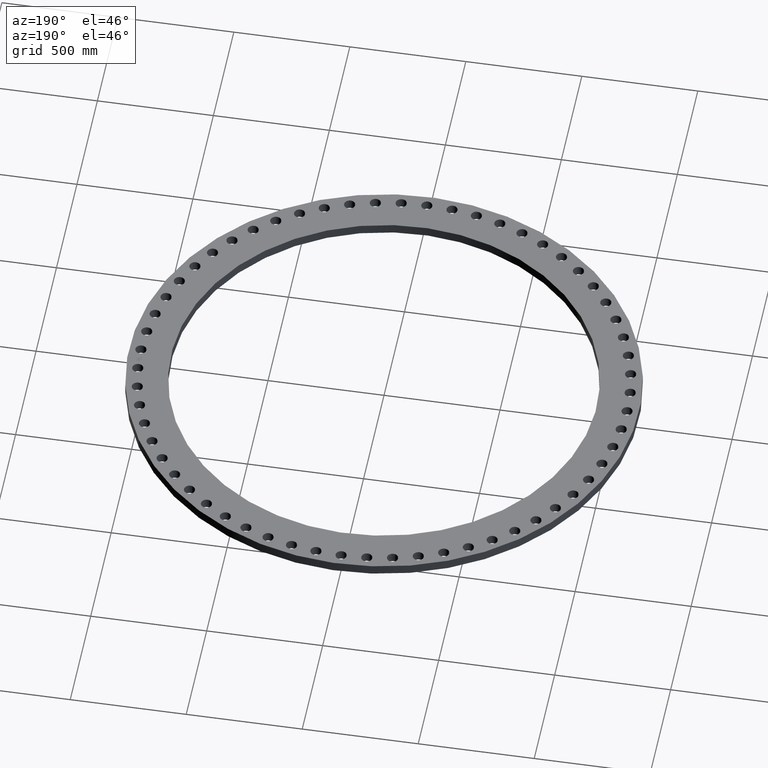
[diagram: clean part render]
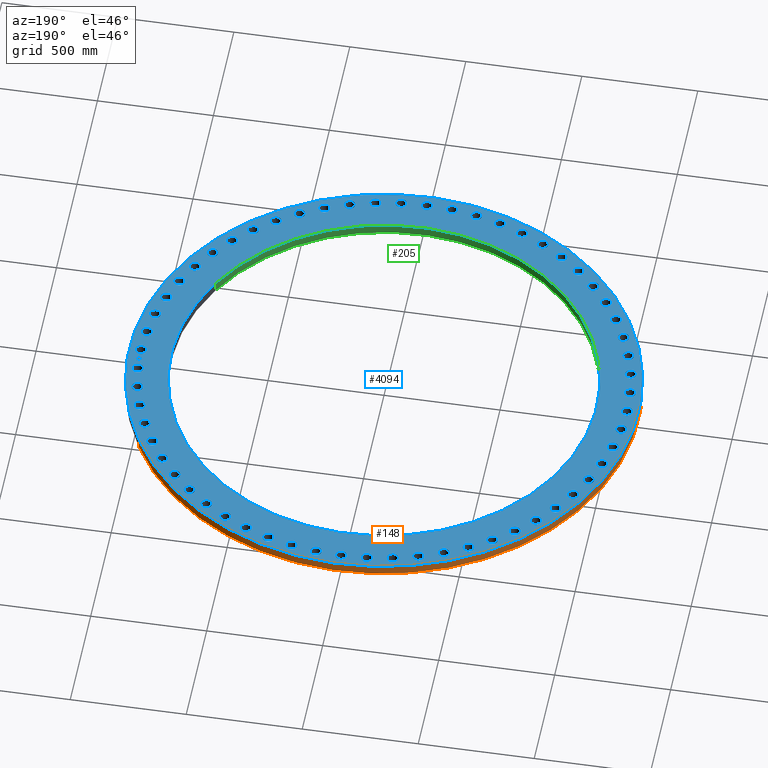
[diagram: same view with three faces highlighted in distinct colors, each labeled with its STEP entity id]
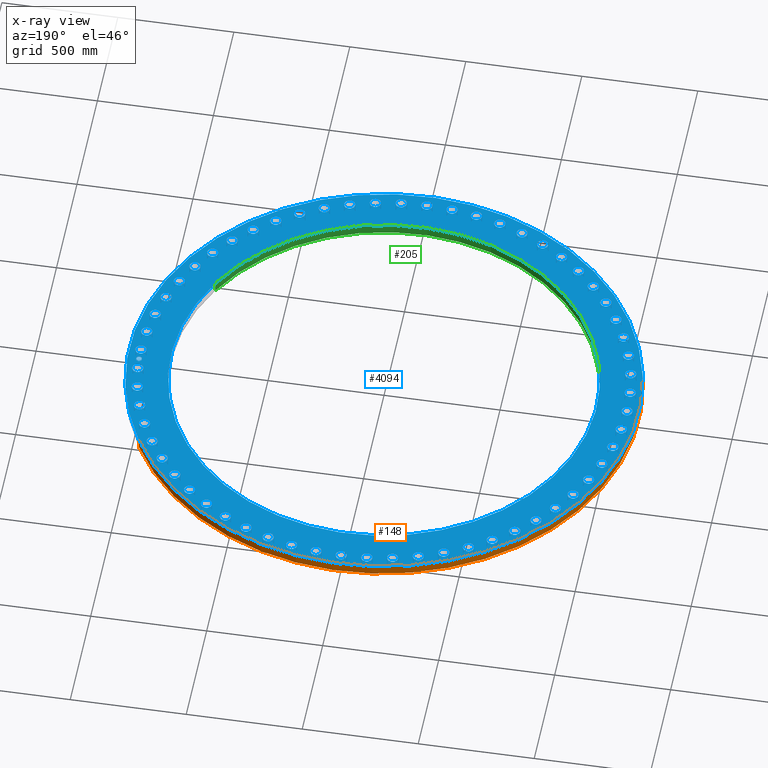
[diagram: x-ray of the same camera — body ghosted, the three highlighted faces saturated]
A machine part, auxiliary view with three faces highlighted in distinct colors.
The next image is the same camera in x-ray (body ghosted, the three faces saturated) — at least one of them is partly hidden behind the body in this view.
Their STEP definitions:

[orange] entity #148 — the highlighted cylindrical surface (partial cylindrical patch) has radius 1098.55 mm, axis along (0, 0, 1).
#95=AXIS2_PLACEMENT_3D('Cylinder Axis2P3D',#92,#93,#94) ;
#134=AXIS2_PLACEMENT_3D('Circle Axis2P3D',#132,#133,$) ;
#139=AXIS2_PLACEMENT_3D('Circle Axis2P3D',#137,#138,$) ;
#92=CARTESIAN_POINT('Axis2P3D Location',(0.,0.,0.875000000004)) ;
#97=CARTESIAN_POINT('Line Origine',(37.9554458019,20.7351545447,0.875000000004)) ;
#101=CARTESIAN_POINT('Vertex',(37.9554458019,20.7351545447,0.)) ;
#103=CARTESIAN_POINT('Vertex',(37.9554458019,20.7351545447,1.75000000001)) ;
#110=CARTESIAN_POINT('Vertex',(-37.9554458019,-20.7351545447,1.75000000001)) ;
#113=CARTESIAN_POINT('Line Origine',(-37.9554458019,-20.7351545447,0.875000000004)) ;
#117=CARTESIAN_POINT('Vertex',(-37.9554458019,-20.7351545447,0.)) ;
#132=CARTESIAN_POINT('Axis2P3D Location',(0.,0.,1.75000000001)) ;
#137=CARTESIAN_POINT('Axis2P3D Location',(0.,0.,0.)) ;
#93=DIRECTION('Axis2P3D Direction',(0.,0.,0.0393700787402)) ;
#94=DIRECTION('Axis2P3D XDirection',(0.0345504945626,0.0188750212049,0.)) ;
#98=DIRECTION('Vector Direction',(0.,0.,0.0393700787402)) ;
#114=DIRECTION('Vector Direction',(0.,0.,0.0393700787402)) ;
#133=DIRECTION('Axis2P3D Direction',(0.,0.,0.0393700787402)) ;
#138=DIRECTION('Axis2P3D Direction',(0.,0.,0.0393700787402)) ;
#99=VECTOR('Line Direction',#98,0.0393700787402) ;
#115=VECTOR('Line Direction',#114,0.0393700787402) ;
#143=ORIENTED_EDGE('',*,*,#119,.T.) ;
#144=ORIENTED_EDGE('',*,*,#136,.F.) ;
#145=ORIENTED_EDGE('',*,*,#105,.F.) ;
#146=ORIENTED_EDGE('',*,*,#141,.T.) ;
#148=ADVANCED_FACE('PartBody',(#147),#96,.T.) ;
#135=CIRCLE('generated circle',#134,43.2500000002) ;
#140=CIRCLE('generated circle',#139,43.2500000002) ;
#96=CYLINDRICAL_SURFACE('generated cylinder',#95,43.2500000002) ;
#105=EDGE_CURVE('',#102,#104,#100,.T.) ;
#119=EDGE_CURVE('',#118,#111,#116,.T.) ;
#136=EDGE_CURVE('',#104,#111,#135,.T.) ;
#141=EDGE_CURVE('',#102,#118,#140,.T.) ;
#142=EDGE_LOOP('',(#143,#144,#145,#146)) ;
#147=FACE_OUTER_BOUND('',#142,.T.) ;
#100=LINE('Line',#97,#99) ;
#116=LINE('Line',#113,#115) ;
#102=VERTEX_POINT('',#101) ;
#104=VERTEX_POINT('',#103) ;
#111=VERTEX_POINT('',#110) ;
#118=VERTEX_POINT('',#117) ;

[blue] entity #4094 — the highlighted planar face has unit normal (0, 0, 1).
#65=AXIS2_PLACEMENT_3D('Circle Axis2P3D',#63,#64,$) ;
#82=AXIS2_PLACEMENT_3D('Circle Axis2P3D',#80,#81,$) ;
#108=AXIS2_PLACEMENT_3D('Circle Axis2P3D',#106,#107,$) ;
#134=AXIS2_PLACEMENT_3D('Circle Axis2P3D',#132,#133,$) ;
#179=AXIS2_PLACEMENT_3D('Circle Axis2P3D',#177,#178,$) ;
#196=AXIS2_PLACEMENT_3D('Circle Axis2P3D',#194,#195,$) ;
#1307=AXIS2_PLACEMENT_3D('Circle Axis2P3D',#1305,#1306,$) ;
#1319=AXIS2_PLACEMENT_3D('Circle Axis2P3D',#1317,#1318,$) ;
#1350=AXIS2_PLACEMENT_3D('Circle Axis2P3D',#1348,#1349,$) ;
#1362=AXIS2_PLACEMENT_3D('Circle Axis2P3D',#1360,#1361,$) ;
#1393=AXIS2_PLACEMENT_3D('Circle Axis2P3D',#1391,#1392,$) ;
#1405=AXIS2_PLACEMENT_3D('Circle Axis2P3D',#1403,#1404,$) ;
#1436=AXIS2_PLACEMENT_3D('Circle Axis2P3D',#1434,#1435,$) ;
#1448=AXIS2_PLACEMENT_3D('Circle Axis2P3D',#1446,#1447,$) ;
#1479=AXIS2_PLACEMENT_3D('Circle Axis2P3D',#1477,#1478,$) ;
#1491=AXIS2_PLACEMENT_3D('Circle Axis2P3D',#1489,#1490,$) ;
#1522=AXIS2_PLACEMENT_3D('Circle Axis2P3D',#1520,#1521,$) ;
#1534=AXIS2_PLACEMENT_3D('Circle Axis2P3D',#1532,#1533,$) ;
#1565=AXIS2_PLACEMENT_3D('Circle Axis2P3D',#1563,#1564,$) ;
#1577=AXIS2_PLACEMENT_3D('Circle Axis2P3D',#1575,#1576,$) ;
#1608=AXIS2_PLACEMENT_3D('Circle Axis2P3D',#1606,#1607,$) ;
#1620=AXIS2_PLACEMENT_3D('Circle Axis2P3D',#1618,#1619,$) ;
#1651=AXIS2_PLACEMENT_3D('Circle Axis2P3D',#1649,#1650,$) ;
#1663=AXIS2_PLACEMENT_3D('Circle Axis2P3D',#1661,#1662,$) ;
#1694=AXIS2_PLACEMENT_3D('Circle Axis2P3D',#1692,#1693,$) ;
#1706=AXIS2_PLACEMENT_3D('Circle Axis2P3D',#1704,#1705,$) ;
#1737=AXIS2_PLACEMENT_3D('Circle Axis2P3D',#1735,#1736,$) ;
#1749=AXIS2_PLACEMENT_3D('Circle Axis2P3D',#1747,#1748,$) ;
#1780=AXIS2_PLACEMENT_3D('Circle Axis2P3D',#1778,#1779,$) ;
#1792=AXIS2_PLACEMENT_3D('Circle Axis2P3D',#1790,#1791,$) ;
#1823=AXIS2_PLACEMENT_3D('Circle Axis2P3D',#1821,#1822,$) ;
#1835=AXIS2_PLACEMENT_3D('Circle Axis2P3D',#1833,#1834,$) ;
#1866=AXIS2_PLACEMENT_3D('Circle Axis2P3D',#1864,#1865,$) ;
#1878=AXIS2_PLACEMENT_3D('Circle Axis2P3D',#1876,#1877,$) ;
#1909=AXIS2_PLACEMENT_3D('Circle Axis2P3D',#1907,#1908,$) ;
#1921=AXIS2_PLACEMENT_3D('Circle Axis2P3D',#1919,#1920,$) ;
#1952=AXIS2_PLACEMENT_3D('Circle Axis2P3D',#1950,#1951,$) ;
#1964=AXIS2_PLACEMENT_3D('Circle Axis2P3D',#1962,#1963,$) ;
#1995=AXIS2_PLACEMENT_3D('Circle Axis2P3D',#1993,#1994,$) ;
#2007=AXIS2_PLACEMENT_3D('Circle Axis2P3D',#2005,#2006,$) ;
#2038=AXIS2_PLACEMENT_3D('Circle Axis2P3D',#2036,#2037,$) ;
#2050=AXIS2_PLACEMENT_3D('Circle Axis2P3D',#2048,#2049,$) ;
#2081=AXIS2_PLACEMENT_3D('Circle Axis2P3D',#2079,#2080,$) ;
#2093=AXIS2_PLACEMENT_3D('Circle Axis2P3D',#2091,#2092,$) ;
#2124=AXIS2_PLACEMENT_3D('Circle Axis2P3D',#2122,#2123,$) ;
#2136=AXIS2_PLACEMENT_3D('Circle Axis2P3D',#2134,#2135,$) ;
#2167=AXIS2_PLACEMENT_3D('Circle Axis2P3D',#2165,#2166,$) ;
#2179=AXIS2_PLACEMENT_3D('Circle Axis2P3D',#2177,#2178,$) ;
#2210=AXIS2_PLACEMENT_3D('Circle Axis2P3D',#2208,#2209,$) ;
#2222=AXIS2_PLACEMENT_3D('Circle Axis2P3D',#2220,#2221,$) ;
#2253=AXIS2_PLACEMENT_3D('Circle Axis2P3D',#2251,#2252,$) ;
#2265=AXIS2_PLACEMENT_3D('Circle Axis2P3D',#2263,#2264,$) ;
#2296=AXIS2_PLACEMENT_3D('Circle Axis2P3D',#2294,#2295,$) ;
#2308=AXIS2_PLACEMENT_3D('Circle Axis2P3D',#2306,#2307,$) ;
#2339=AXIS2_PLACEMENT_3D('Circle Axis2P3D',#2337,#2338,$) ;
#2351=AXIS2_PLACEMENT_3D('Circle Axis2P3D',#2349,#2350,$) ;
#2382=AXIS2_PLACEMENT_3D('Circle Axis2P3D',#2380,#2381,$) ;
#2394=AXIS2_PLACEMENT_3D('Circle Axis2P3D',#2392,#2393,$) ;
#2425=AXIS2_PLACEMENT_3D('Circle Axis2P3D',#2423,#2424,$) ;
#2437=AXIS2_PLACEMENT_3D('Circle Axis2P3D',#2435,#2436,$) ;
#2468=AXIS2_PLACEMENT_3D('Circle Axis2P3D',#2466,#2467,$) ;
#2480=AXIS2_PLACEMENT_3D('Circle Axis2P3D',#2478,#2479,$) ;
#2511=AXIS2_PLACEMENT_3D('Circle Axis2P3D',#2509,#2510,$) ;
#2523=AXIS2_PLACEMENT_3D('Circle Axis2P3D',#2521,#2522,$) ;
#2554=AXIS2_PLACEMENT_3D('Circle Axis2P3D',#2552,#2553,$) ;
#2566=AXIS2_PLACEMENT_3D('Circle Axis2P3D',#2564,#2565,$) ;
#2597=AXIS2_PLACEMENT_3D('Circle Axis2P3D',#2595,#2596,$) ;
#2609=AXIS2_PLACEMENT_3D('Circle Axis2P3D',#2607,#2608,$) ;
#2640=AXIS2_PLACEMENT_3D('Circle Axis2P3D',#2638,#2639,$) ;
#2652=AXIS2_PLACEMENT_3D('Circle Axis2P3D',#2650,#2651,$) ;
#2683=AXIS2_PLACEMENT_3D('Circle Axis2P3D',#2681,#2682,$) ;
#2695=AXIS2_PLACEMENT_3D('Circle Axis2P3D',#2693,#2694,$) ;
#2726=AXIS2_PLACEMENT_3D('Circle Axis2P3D',#2724,#2725,$) ;
#2738=AXIS2_PLACEMENT_3D('Circle Axis2P3D',#2736,#2737,$) ;
#2769=AXIS2_PLACEMENT_3D('Circle Axis2P3D',#2767,#2768,$) ;
#2781=AXIS2_PLACEMENT_3D('Circle Axis2P3D',#2779,#2780,$) ;
#2812=AXIS2_PLACEMENT_3D('Circle Axis2P3D',#2810,#2811,$) ;
#2824=AXIS2_PLACEMENT_3D('Circle Axis2P3D',#2822,#2823,$) ;
#2855=AXIS2_PLACEMENT_3D('Circle Axis2P3D',#2853,#2854,$) ;
#2867=AXIS2_PLACEMENT_3D('Circle Axis2P3D',#2865,#2866,$) ;
#2898=AXIS2_PLACEMENT_3D('Circle Axis2P3D',#2896,#2897,$) ;
#2910=AXIS2_PLACEMENT_3D('Circle Axis2P3D',#2908,#2909,$) ;
#2941=AXIS2_PLACEMENT_3D('Circle Axis2P3D',#2939,#2940,$) ;
#2953=AXIS2_PLACEMENT_3D('Circle Axis2P3D',#2951,#2952,$) ;
#2984=AXIS2_PLACEMENT_3D('Circle Axis2P3D',#2982,#2983,$) ;
#2996=AXIS2_PLACEMENT_3D('Circle Axis2P3D',#2994,#2995,$) ;
#3027=AXIS2_PLACEMENT_3D('Circle Axis2P3D',#3025,#3026,$) ;
#3039=AXIS2_PLACEMENT_3D('Circle Axis2P3D',#3037,#3038,$) ;
#3070=AXIS2_PLACEMENT_3D('Circle Axis2P3D',#3068,#3069,$) ;
#3082=AXIS2_PLACEMENT_3D('Circle Axis2P3D',#3080,#3081,$) ;
#3113=AXIS2_PLACEMENT_3D('Circle Axis2P3D',#3111,#3112,$) ;
#3125=AXIS2_PLACEMENT_3D('Circle Axis2P3D',#3123,#3124,$) ;
#3156=AXIS2_PLACEMENT_3D('Circle Axis2P3D',#3154,#3155,$) ;
#3168=AXIS2_PLACEMENT_3D('Circle Axis2P3D',#3166,#3167,$) ;
#3199=AXIS2_PLACEMENT_3D('Circle Axis2P3D',#3197,#3198,$) ;
#3211=AXIS2_PLACEMENT_3D('Circle Axis2P3D',#3209,#3210,$) ;
#3242=AXIS2_PLACEMENT_3D('Circle Axis2P3D',#3240,#3241,$) ;
#3254=AXIS2_PLACEMENT_3D('Circle Axis2P3D',#3252,#3253,$) ;
#3285=AXIS2_PLACEMENT_3D('Circle Axis2P3D',#3283,#3284,$) ;
#3297=AXIS2_PLACEMENT_3D('Circle Axis2P3D',#3295,#3296,$) ;
#3328=AXIS2_PLACEMENT_3D('Circle Axis2P3D',#3326,#3327,$) ;
#3340=AXIS2_PLACEMENT_3D('Circle Axis2P3D',#3338,#3339,$) ;
#3371=AXIS2_PLACEMENT_3D('Circle Axis2P3D',#3369,#3370,$) ;
#3383=AXIS2_PLACEMENT_3D('Circle Axis2P3D',#3381,#3382,$) ;
#3414=AXIS2_PLACEMENT_3D('Circle Axis2P3D',#3412,#3413,$) ;
#3426=AXIS2_PLACEMENT_3D('Circle Axis2P3D',#3424,#3425,$) ;
#3457=AXIS2_PLACEMENT_3D('Circle Axis2P3D',#3455,#3456,$) ;
#3469=AXIS2_PLACEMENT_3D('Circle Axis2P3D',#3467,#3468,$) ;
#3500=AXIS2_PLACEMENT_3D('Circle Axis2P3D',#3498,#3499,$) ;
#3512=AXIS2_PLACEMENT_3D('Circle Axis2P3D',#3510,#3511,$) ;
#3543=AXIS2_PLACEMENT_3D('Circle Axis2P3D',#3541,#3542,$) ;
#3555=AXIS2_PLACEMENT_3D('Circle Axis2P3D',#3553,#3554,$) ;
#3586=AXIS2_PLACEMENT_3D('Circle Axis2P3D',#3584,#3585,$) ;
#3598=AXIS2_PLACEMENT_3D('Circle Axis2P3D',#3596,#3597,$) ;
#3629=AXIS2_PLACEMENT_3D('Circle Axis2P3D',#3627,#3628,$) ;
#3641=AXIS2_PLACEMENT_3D('Circle Axis2P3D',#3639,#3640,$) ;
#3672=AXIS2_PLACEMENT_3D('Circle Axis2P3D',#3670,#3671,$) ;
#3684=AXIS2_PLACEMENT_3D('Circle Axis2P3D',#3682,#3683,$) ;
#3715=AXIS2_PLACEMENT_3D('Circle Axis2P3D',#3713,#3714,$) ;
#3727=AXIS2_PLACEMENT_3D('Circle Axis2P3D',#3725,#3726,$) ;
#3758=AXIS2_PLACEMENT_3D('Circle Axis2P3D',#3756,#3757,$) ;
#3770=AXIS2_PLACEMENT_3D('Circle Axis2P3D',#3768,#3769,$) ;
#3801=AXIS2_PLACEMENT_3D('Circle Axis2P3D',#3799,#3800,$) ;
#3813=AXIS2_PLACEMENT_3D('Circle Axis2P3D',#3811,#3812,$) ;
#3826=AXIS2_PLACEMENT_3D('Plane Axis2P3D',#3823,#3824,#3825) ;
#4078=AXIS2_PLACEMENT_3D('Circle Axis2P3D',#4076,#4077,$) ;
#4087=AXIS2_PLACEMENT_3D('Circle Axis2P3D',#4085,#4086,$) ;
#46=CARTESIAN_POINT('Vertex',(40.4272663484,0.449461442443,1.75000000001)) ;
#60=CARTESIAN_POINT('Vertex',(42.0727336519,-0.449461442443,1.75000000001)) ;
#63=CARTESIAN_POINT('Axis2P3D Location',(41.2500000002,0.,1.75000000001)) ;
#80=CARTESIAN_POINT('Axis2P3D Location',(41.2500000002,0.,1.75000000001)) ;
#103=CARTESIAN_POINT('Vertex',(37.9554458019,20.7351545447,1.75000000001)) ;
#106=CARTESIAN_POINT('Axis2P3D Location',(0.,0.,1.75000000001)) ;
#110=CARTESIAN_POINT('Vertex',(-37.9554458019,-20.7351545447,1.75000000001)) ;
#132=CARTESIAN_POINT('Axis2P3D Location',(0.,0.,1.75000000001)) ;
#160=CARTESIAN_POINT('Vertex',(-31.6763425716,17.304864816,1.75000000001)) ;
#174=CARTESIAN_POINT('Vertex',(31.6763425716,-17.304864816,1.75000000001)) ;
#177=CARTESIAN_POINT('Axis2P3D Location',(-6.64385432059E-016,-2.09805925913E-016,1.75000000001)) ;
#194=CARTESIAN_POINT('Axis2P3D Location',(-6.64385432059E-016,-2.09805925913E-016,1.75000000001)) ;
#1295=CARTESIAN_POINT('Vertex',(40.1588200395,4.67279927114,1.75000000001)) ;
#1302=CARTESIAN_POINT('Vertex',(41.8892363287,3.95079894847,1.75000000001)) ;
#1305=CARTESIAN_POINT('Axis2P3D Location',(41.0240281841,4.31179910981,1.75000000001)) ;
#1317=CARTESIAN_POINT('Axis2P3D Location',(41.0240281841,4.31179910981,1.75000000001)) ;
#1338=CARTESIAN_POINT('Vertex',(39.4503852944,8.84494093318,1.75000000001)) ;
#1345=CARTESIAN_POINT('Vertex',(41.2467917664,8.30777355935,1.75000000001)) ;
#1348=CARTESIAN_POINT('Axis2P3D Location',(40.3485885304,8.57635724627,1.75000000001)) ;
#1360=CARTESIAN_POINT('Axis2P3D Location',(40.3485885304,8.57635724627,1.75000000001)) ;
#1381=CARTESIAN_POINT('Vertex',(38.3097238726,12.9201755714,1.75000000001)) ;
#1388=CARTESIAN_POINT('Vertex',(40.1524387221,12.5737264646,1.75000000001)) ;
#1391=CARTESIAN_POINT('Axis2P3D Location',(39.2310812973,12.746951018,1.75000000001)) ;
#1403=CARTESIAN_POINT('Axis2P3D Location',(39.2310812973,12.746951018,1.75000000001)) ;
#1424=CARTESIAN_POINT('Vertex',(36.7493330992,16.8538540624,1.75000000001)) ;
#1431=CARTESIAN_POINT('Vertex',(38.6181671566,16.7019189915,1.75000000001)) ;
#1434=CARTESIAN_POINT('Axis2P3D Location',(37.6837501279,16.7778865269,1.75000000001)) ;
#1446=CARTESIAN_POINT('Axis2P3D Location',(37.6837501279,16.7778865269,1.75000000001)) ;
#1467=CARTESIAN_POINT('Vertex',(34.786308942,20.6028782014,1.75000000001)) ;
#1474=CARTESIAN_POINT('Vertex',(36.6607868705,20.6471217988,1.75000000001)) ;
#1477=CARTESIAN_POINT('Axis2P3D Location',(35.7235479063,20.6250000001,1.75000000001)) ;
#1489=CARTESIAN_POINT('Axis2P3D Location',(35.7235479063,20.6250000001,1.75000000001)) ;
#1510=CARTESIAN_POINT('Vertex',(32.4421587046,24.1261728953,1.75000000001)) ;
#1517=CARTESIAN_POINT('Vertex',(34.3017433316,24.366110419,1.75000000001)) ;
#1520=CARTESIAN_POINT('Axis2P3D Location',(33.3719510181,24.2461416572,1.75000000001)) ;
#1532=CARTESIAN_POINT('Axis2P3D Location',(33.3719510181,24.2461416572,1.75000000001)) ;
#1553=CARTESIAN_POINT('Vertex',(29.7425653875,27.3851361903,1.75000000001)) ;
#1560=CARTESIAN_POINT('Vertex',(31.5668827146,27.8181388345,1.75000000001)) ;
#1563=CARTESIAN_POINT('Axis2P3D Location',(30.6547240511,27.6016375124,1.75000000001)) ;
#1575=CARTESIAN_POINT('Axis2P3D Location',(30.6547240511,27.6016375124,1.75000000001)) ;
#1596=CARTESIAN_POINT('Vertex',(26.7171062999,30.3440622025,1.75000000001)) ;
#1603=CARTESIAN_POINT('Vertex',(28.4861687249,30.9653858996,1.75000000001)) ;
#1606=CARTESIAN_POINT('Axis2P3D Location',(27.6016375124,30.6547240511,1.75000000001)) ;
#1618=CARTESIAN_POINT('Axis2P3D Location',(27.6016375124,30.6547240511,1.75000000001)) ;
#1639=CARTESIAN_POINT('Vertex',(23.3989290048,32.9705323193,1.75000000001)) ;
#1646=CARTESIAN_POINT('Vertex',(25.0933543095,33.7733697169,1.75000000001)) ;
#1649=CARTESIAN_POINT('Axis2P3D Location',(24.2461416572,33.3719510181,1.75000000001)) ;
#1661=CARTESIAN_POINT('Axis2P3D Location',(24.2461416572,33.3719510181,1.75000000001)) ;
#1682=CARTESIAN_POINT('Vertex',(19.824388147,35.2357703845,1.75000000001)) ;
#1689=CARTESIAN_POINT('Vertex',(21.4256118531,36.211325428,1.75000000001)) ;
#1692=CARTESIAN_POINT('Axis2P3D Location',(20.6250000001,35.7235479063,1.75000000001)) ;
#1704=CARTESIAN_POINT('Axis2P3D Location',(20.6250000001,35.7235479063,1.75000000001)) ;
#1725=CARTESIAN_POINT('Vertex',(16.0326471441,37.1149579758,1.75000000001)) ;
#1732=CARTESIAN_POINT('Vertex',(17.5231259097,38.25254228,1.75000000001)) ;
#1735=CARTESIAN_POINT('Axis2P3D Location',(16.7778865269,37.6837501279,1.75000000001)) ;
#1747=CARTESIAN_POINT('Axis2P3D Location',(16.7778865269,37.6837501279,1.75000000001)) ;
#1768=CARTESIAN_POINT('Vertex',(12.0652491041,38.5875063207,1.75000000001)) ;
#1775=CARTESIAN_POINT('Vertex',(13.4286529319,39.874656274,1.75000000001)) ;
#1778=CARTESIAN_POINT('Axis2P3D Location',(12.746951018,39.2310812973,1.75000000001)) ;
#1790=CARTESIAN_POINT('Axis2P3D Location',(12.746951018,39.2310812973,1.75000000001)) ;
#1811=CARTESIAN_POINT('Vertex',(7.96566167009,39.6372818714,1.75000000001)) ;
#1818=CARTESIAN_POINT('Vertex',(9.18705282245,41.0598951895,1.75000000001)) ;
#1821=CARTESIAN_POINT('Axis2P3D Location',(8.57635724627,40.3485885304,1.75000000001)) ;
#1833=CARTESIAN_POINT('Axis2P3D Location',(8.57635724627,40.3485885304,1.75000000001)) ;
#1854=CARTESIAN_POINT('Vertex',(3.77880077988,40.2527830672,1.75000000001)) ;
#1861=CARTESIAN_POINT('Vertex',(4.84479743974,41.795273301,1.75000000001)) ;
#1864=CARTESIAN_POINT('Axis2P3D Location',(4.31179910981,41.0240281841,1.75000000001)) ;
#1876=CARTESIAN_POINT('Axis2P3D Location',(4.31179910981,41.0240281841,1.75000000001)) ;
#1897=CARTESIAN_POINT('Vertex',(-0.449461442443,40.4272663484,1.75000000001)) ;
#1904=CARTESIAN_POINT('Vertex',(0.449461442443,42.0727336519,1.75000000001)) ;
#1907=CARTESIAN_POINT('Axis2P3D Location',(-6.42588548239E-015,41.2500000002,1.75000000001)) ;
#1919=CARTESIAN_POINT('Axis2P3D Location',(-6.42588548239E-015,41.2500000002,1.75000000001)) ;
#1940=CARTESIAN_POINT('Vertex',(-4.67279927114,40.1588200395,1.75000000001)) ;
#1947=CARTESIAN_POINT('Vertex',(-3.95079894847,41.8892363287,1.75000000001)) ;
#1950=CARTESIAN_POINT('Axis2P3D Location',(-4.31179910981,41.0240281841,1.75000000001)) ;
#1962=CARTESIAN_POINT('Axis2P3D Location',(-4.31179910981,41.0240281841,1.75000000001)) ;
#1983=CARTESIAN_POINT('Vertex',(-8.84494093318,39.4503852944,1.75000000001)) ;
#1990=CARTESIAN_POINT('Vertex',(-8.30777355935,41.2467917664,1.75000000001)) ;
#1993=CARTESIAN_POINT('Axis2P3D Location',(-8.57635724627,40.3485885304,1.75000000001)) ;
#2005=CARTESIAN_POINT('Axis2P3D Location',(-8.57635724627,40.3485885304,1.75000000001)) ;
#2026=CARTESIAN_POINT('Vertex',(-12.9201755714,38.3097238726,1.75000000001)) ;
#2033=CARTESIAN_POINT('Vertex',(-12.5737264646,40.1524387221,1.75000000001)) ;
#2036=CARTESIAN_POINT('Axis2P3D Location',(-12.746951018,39.2310812973,1.75000000001)) ;
#2048=CARTESIAN_POINT('Axis2P3D Location',(-12.746951018,39.2310812973,1.75000000001)) ;
#2069=CARTESIAN_POINT('Vertex',(-16.8538540624,36.7493330992,1.75000000001)) ;
#2076=CARTESIAN_POINT('Vertex',(-16.7019189915,38.6181671566,1.75000000001)) ;
#2079=CARTESIAN_POINT('Axis2P3D Location',(-16.7778865269,37.6837501279,1.75000000001)) ;
#2091=CARTESIAN_POINT('Axis2P3D Location',(-16.7778865269,37.6837501279,1.75000000001)) ;
#2112=CARTESIAN_POINT('Vertex',(-20.6028782014,34.786308942,1.75000000001)) ;
#2119=CARTESIAN_POINT('Vertex',(-20.6471217988,36.6607868705,1.75000000001)) ;
#2122=CARTESIAN_POINT('Axis2P3D Location',(-20.6250000001,35.7235479063,1.75000000001)) ;
#2134=CARTESIAN_POINT('Axis2P3D Location',(-20.6250000001,35.7235479063,1.75000000001)) ;
#2155=CARTESIAN_POINT('Vertex',(-24.1261728953,32.4421587046,1.75000000001)) ;
#2162=CARTESIAN_POINT('Vertex',(-24.366110419,34.3017433316,1.75000000001)) ;
#2165=CARTESIAN_POINT('Axis2P3D Location',(-24.2461416572,33.3719510181,1.75000000001)) ;
#2177=CARTESIAN_POINT('Axis2P3D Location',(-24.2461416572,33.3719510181,1.75000000001)) ;
#2198=CARTESIAN_POINT('Vertex',(-27.3851361903,29.7425653875,1.75000000001)) ;
#2205=CARTESIAN_POINT('Vertex',(-27.8181388345,31.5668827146,1.75000000001)) ;
#2208=CARTESIAN_POINT('Axis2P3D Location',(-27.6016375124,30.6547240511,1.75000000001)) ;
#2220=CARTESIAN_POINT('Axis2P3D Location',(-27.6016375124,30.6547240511,1.75000000001)) ;
#2241=CARTESIAN_POINT('Vertex',(-30.3440622025,26.7171062999,1.75000000001)) ;
#2248=CARTESIAN_POINT('Vertex',(-30.9653858996,28.4861687249,1.75000000001)) ;
#2251=CARTESIAN_POINT('Axis2P3D Location',(-30.6547240511,27.6016375124,1.75000000001)) ;
#2263=CARTESIAN_POINT('Axis2P3D Location',(-30.6547240511,27.6016375124,1.75000000001)) ;
#2284=CARTESIAN_POINT('Vertex',(-32.9705323193,23.3989290048,1.75000000001)) ;
#2291=CARTESIAN_POINT('Vertex',(-33.7733697169,25.0933543095,1.75000000001)) ;
#2294=CARTESIAN_POINT('Axis2P3D Location',(-33.3719510181,24.2461416572,1.75000000001)) ;
#2306=CARTESIAN_POINT('Axis2P3D Location',(-33.3719510181,24.2461416572,1.75000000001)) ;
#2327=CARTESIAN_POINT('Vertex',(-35.2357703845,19.824388147,1.75000000001)) ;
#2334=CARTESIAN_POINT('Vertex',(-36.211325428,21.4256118531,1.75000000001)) ;
#2337=CARTESIAN_POINT('Axis2P3D Location',(-35.7235479063,20.6250000001,1.75000000001)) ;
#2349=CARTESIAN_POINT('Axis2P3D Location',(-35.7235479063,20.6250000001,1.75000000001)) ;
#2370=CARTESIAN_POINT('Vertex',(-37.1149579758,16.0326471441,1.75000000001)) ;
#2377=CARTESIAN_POINT('Vertex',(-38.25254228,17.5231259097,1.75000000001)) ;
#2380=CARTESIAN_POINT('Axis2P3D Location',(-37.6837501279,16.7778865269,1.75000000001)) ;
#2392=CARTESIAN_POINT('Axis2P3D Location',(-37.6837501279,16.7778865269,1.75000000001)) ;
#2413=CARTESIAN_POINT('Vertex',(-38.5875063207,12.0652491041,1.75000000001)) ;
#2420=CARTESIAN_POINT('Vertex',(-39.874656274,13.4286529319,1.75000000001)) ;
#2423=CARTESIAN_POINT('Axis2P3D Location',(-39.2310812973,12.746951018,1.75000000001)) ;
#2435=CARTESIAN_POINT('Axis2P3D Location',(-39.2310812973,12.746951018,1.75000000001)) ;
#2456=CARTESIAN_POINT('Vertex',(-39.6372818714,7.96566167009,1.75000000001)) ;
#2463=CARTESIAN_POINT('Vertex',(-41.0598951895,9.18705282245,1.75000000001)) ;
#2466=CARTESIAN_POINT('Axis2P3D Location',(-40.3485885304,8.57635724627,1.75000000001)) ;
#2478=CARTESIAN_POINT('Axis2P3D Location',(-40.3485885304,8.57635724627,1.75000000001)) ;
#2499=CARTESIAN_POINT('Vertex',(-40.2527830672,3.77880077988,1.75000000001)) ;
#2506=CARTESIAN_POINT('Vertex',(-41.795273301,4.84479743974,1.75000000001)) ;
#2509=CARTESIAN_POINT('Axis2P3D Location',(-41.0240281841,4.31179910981,1.75000000001)) ;
#2521=CARTESIAN_POINT('Axis2P3D Location',(-41.0240281841,4.31179910981,1.75000000001)) ;
#2542=CARTESIAN_POINT('Vertex',(-40.4272663484,-0.449461442443,1.75000000001)) ;
#2549=CARTESIAN_POINT('Vertex',(-42.0727336519,0.449461442443,1.75000000001)) ;
#2552=CARTESIAN_POINT('Axis2P3D Location',(-41.2500000002,5.0516680465E-015,1.75000000001)) ;
#2564=CARTESIAN_POINT('Axis2P3D Location',(-41.2500000002,5.0516680465E-015,1.75000000001)) ;
#2585=CARTESIAN_POINT('Vertex',(-40.1588200395,-4.67279927114,1.75000000001)) ;
#2592=CARTESIAN_POINT('Vertex',(-41.8892363287,-3.95079894847,1.75000000001)) ;
#2595=CARTESIAN_POINT('Axis2P3D Location',(-41.0240281841,-4.31179910981,1.75000000001)) ;
#2607=CARTESIAN_POINT('Axis2P3D Location',(-41.0240281841,-4.31179910981,1.75000000001)) ;
#2628=CARTESIAN_POINT('Vertex',(-39.4503852944,-8.84494093318,1.75000000001)) ;
#2635=CARTESIAN_POINT('Vertex',(-41.2467917664,-8.30777355935,1.75000000001)) ;
#2638=CARTESIAN_POINT('Axis2P3D Location',(-40.3485885304,-8.57635724627,1.75000000001)) ;
#2650=CARTESIAN_POINT('Axis2P3D Location',(-40.3485885304,-8.57635724627,1.75000000001)) ;
#2671=CARTESIAN_POINT('Vertex',(-38.3097238726,-12.9201755714,1.75000000001)) ;
#2678=CARTESIAN_POINT('Vertex',(-40.1524387221,-12.5737264646,1.75000000001)) ;
#2681=CARTESIAN_POINT('Axis2P3D Location',(-39.2310812973,-12.746951018,1.75000000001)) ;
#2693=CARTESIAN_POINT('Axis2P3D Location',(-39.2310812973,-12.746951018,1.75000000001)) ;
#2714=CARTESIAN_POINT('Vertex',(-36.7493330992,-16.8538540624,1.75000000001)) ;
#2721=CARTESIAN_POINT('Vertex',(-38.6181671566,-16.7019189915,1.75000000001)) ;
#2724=CARTESIAN_POINT('Axis2P3D Location',(-37.6837501279,-16.7778865269,1.75000000001)) ;
#2736=CARTESIAN_POINT('Axis2P3D Location',(-37.6837501279,-16.7778865269,1.75000000001)) ;
#2757=CARTESIAN_POINT('Vertex',(-34.786308942,-20.6028782014,1.75000000001)) ;
#2764=CARTESIAN_POINT('Vertex',(-36.6607868705,-20.6471217988,1.75000000001)) ;
#2767=CARTESIAN_POINT('Axis2P3D Location',(-35.7235479063,-20.6250000001,1.75000000001)) ;
#2779=CARTESIAN_POINT('Axis2P3D Location',(-35.7235479063,-20.6250000001,1.75000000001)) ;
#2800=CARTESIAN_POINT('Vertex',(-32.4421587046,-24.1261728953,1.75000000001)) ;
#2807=CARTESIAN_POINT('Vertex',(-34.3017433316,-24.366110419,1.75000000001)) ;
#2810=CARTESIAN_POINT('Axis2P3D Location',(-33.3719510181,-24.2461416572,1.75000000001)) ;
#2822=CARTESIAN_POINT('Axis2P3D Location',(-33.3719510181,-24.2461416572,1.75000000001)) ;
#2843=CARTESIAN_POINT('Vertex',(-29.7425653875,-27.3851361903,1.75000000001)) ;
#2850=CARTESIAN_POINT('Vertex',(-31.5668827146,-27.8181388345,1.75000000001)) ;
#2853=CARTESIAN_POINT('Axis2P3D Location',(-30.6547240511,-27.6016375124,1.75000000001)) ;
#2865=CARTESIAN_POINT('Axis2P3D Location',(-30.6547240511,-27.6016375124,1.75000000001)) ;
#2886=CARTESIAN_POINT('Vertex',(-26.7171062999,-30.3440622025,1.75000000001)) ;
#2893=CARTESIAN_POINT('Vertex',(-28.4861687249,-30.9653858996,1.75000000001)) ;
#2896=CARTESIAN_POINT('Axis2P3D Location',(-27.6016375124,-30.6547240511,1.75000000001)) ;
#2908=CARTESIAN_POINT('Axis2P3D Location',(-27.6016375124,-30.6547240511,1.75000000001)) ;
#2929=CARTESIAN_POINT('Vertex',(-23.3989290048,-32.9705323193,1.75000000001)) ;
#2936=CARTESIAN_POINT('Vertex',(-25.0933543095,-33.7733697169,1.75000000001)) ;
#2939=CARTESIAN_POINT('Axis2P3D Location',(-24.2461416572,-33.3719510181,1.75000000001)) ;
#2951=CARTESIAN_POINT('Axis2P3D Location',(-24.2461416572,-33.3719510181,1.75000000001)) ;
#2972=CARTESIAN_POINT('Vertex',(-19.824388147,-35.2357703845,1.75000000001)) ;
#2979=CARTESIAN_POINT('Vertex',(-21.4256118531,-36.211325428,1.75000000001)) ;
#2982=CARTESIAN_POINT('Axis2P3D Location',(-20.6250000001,-35.7235479063,1.75000000001)) ;
#2994=CARTESIAN_POINT('Axis2P3D Location',(-20.6250000001,-35.7235479063,1.75000000001)) ;
#3015=CARTESIAN_POINT('Vertex',(-16.0326471441,-37.1149579758,1.75000000001)) ;
#3022=CARTESIAN_POINT('Vertex',(-17.5231259097,-38.25254228,1.75000000001)) ;
#3025=CARTESIAN_POINT('Axis2P3D Location',(-16.7778865269,-37.6837501279,1.75000000001)) ;
#3037=CARTESIAN_POINT('Axis2P3D Location',(-16.7778865269,-37.6837501279,1.75000000001)) ;
#3058=CARTESIAN_POINT('Vertex',(-12.0652491041,-38.5875063207,1.75000000001)) ;
#3065=CARTESIAN_POINT('Vertex',(-13.4286529319,-39.874656274,1.75000000001)) ;
#3068=CARTESIAN_POINT('Axis2P3D Location',(-12.746951018,-39.2310812973,1.75000000001)) ;
#3080=CARTESIAN_POINT('Axis2P3D Location',(-12.746951018,-39.2310812973,1.75000000001)) ;
#3101=CARTESIAN_POINT('Vertex',(-7.96566167009,-39.6372818714,1.75000000001)) ;
#3108=CARTESIAN_POINT('Vertex',(-9.18705282245,-41.0598951895,1.75000000001)) ;
#3111=CARTESIAN_POINT('Axis2P3D Location',(-8.57635724627,-40.3485885304,1.75000000001)) ;
#3123=CARTESIAN_POINT('Axis2P3D Location',(-8.57635724627,-40.3485885304,1.75000000001)) ;
#3144=CARTESIAN_POINT('Vertex',(-3.77880077988,-40.2527830672,1.75000000001)) ;
#3151=CARTESIAN_POINT('Vertex',(-4.84479743974,-41.795273301,1.75000000001)) ;
#3154=CARTESIAN_POINT('Axis2P3D Location',(-4.31179910981,-41.0240281841,1.75000000001)) ;
#3166=CARTESIAN_POINT('Axis2P3D Location',(-4.31179910981,-41.0240281841,1.75000000001)) ;
#3187=CARTESIAN_POINT('Vertex',(0.449461442443,-40.4272663484,1.75000000001)) ;
#3194=CARTESIAN_POINT('Vertex',(-0.449461442443,-42.0727336519,1.75000000001)) ;
#3197=CARTESIAN_POINT('Axis2P3D Location',(-7.57750206975E-015,-41.2500000002,1.75000000001)) ;
#3209=CARTESIAN_POINT('Axis2P3D Location',(-7.57750206975E-015,-41.2500000002,1.75000000001)) ;
#3230=CARTESIAN_POINT('Vertex',(4.67279927114,-40.1588200395,1.75000000001)) ;
#3237=CARTESIAN_POINT('Vertex',(3.95079894847,-41.8892363287,1.75000000001)) ;
#3240=CARTESIAN_POINT('Axis2P3D Location',(4.31179910981,-41.0240281841,1.75000000001)) ;
#3252=CARTESIAN_POINT('Axis2P3D Location',(4.31179910981,-41.0240281841,1.75000000001)) ;
#3273=CARTESIAN_POINT('Vertex',(8.84494093318,-39.4503852944,1.75000000001)) ;
#3280=CARTESIAN_POINT('Vertex',(8.30777355935,-41.2467917664,1.75000000001)) ;
#3283=CARTESIAN_POINT('Axis2P3D Location',(8.57635724627,-40.3485885304,1.75000000001)) ;
#3295=CARTESIAN_POINT('Axis2P3D Location',(8.57635724627,-40.3485885304,1.75000000001)) ;
#3316=CARTESIAN_POINT('Vertex',(12.9201755714,-38.3097238726,1.75000000001)) ;
#3323=CARTESIAN_POINT('Vertex',(12.5737264646,-40.1524387221,1.75000000001)) ;
#3326=CARTESIAN_POINT('Axis2P3D Location',(12.746951018,-39.2310812973,1.75000000001)) ;
#3338=CARTESIAN_POINT('Axis2P3D Location',(12.746951018,-39.2310812973,1.75000000001)) ;
#3359=CARTESIAN_POINT('Vertex',(16.8538540624,-36.7493330992,1.75000000001)) ;
#3366=CARTESIAN_POINT('Vertex',(16.7019189915,-38.6181671566,1.75000000001)) ;
#3369=CARTESIAN_POINT('Axis2P3D Location',(16.7778865269,-37.6837501279,1.75000000001)) ;
#3381=CARTESIAN_POINT('Axis2P3D Location',(16.7778865269,-37.6837501279,1.75000000001)) ;
#3402=CARTESIAN_POINT('Vertex',(20.6028782014,-34.786308942,1.75000000001)) ;
#3409=CARTESIAN_POINT('Vertex',(20.6471217988,-36.6607868705,1.75000000001)) ;
#3412=CARTESIAN_POINT('Axis2P3D Location',(20.6250000001,-35.7235479063,1.75000000001)) ;
#3424=CARTESIAN_POINT('Axis2P3D Location',(20.6250000001,-35.7235479063,1.75000000001)) ;
#3445=CARTESIAN_POINT('Vertex',(24.1261728953,-32.4421587046,1.75000000001)) ;
#3452=CARTESIAN_POINT('Vertex',(24.366110419,-34.3017433316,1.75000000001)) ;
#3455=CARTESIAN_POINT('Axis2P3D Location',(24.2461416572,-33.3719510181,1.75000000001)) ;
#3467=CARTESIAN_POINT('Axis2P3D Location',(24.2461416572,-33.3719510181,1.75000000001)) ;
#3488=CARTESIAN_POINT('Vertex',(27.3851361903,-29.7425653875,1.75000000001)) ;
#3495=CARTESIAN_POINT('Vertex',(27.8181388345,-31.5668827146,1.75000000001)) ;
#3498=CARTESIAN_POINT('Axis2P3D Location',(27.6016375124,-30.6547240511,1.75000000001)) ;
#3510=CARTESIAN_POINT('Axis2P3D Location',(27.6016375124,-30.6547240511,1.75000000001)) ;
#3531=CARTESIAN_POINT('Vertex',(30.3440622025,-26.7171062999,1.75000000001)) ;
#3538=CARTESIAN_POINT('Vertex',(30.9653858996,-28.4861687249,1.75000000001)) ;
#3541=CARTESIAN_POINT('Axis2P3D Location',(30.6547240511,-27.6016375124,1.75000000001)) ;
#3553=CARTESIAN_POINT('Axis2P3D Location',(30.6547240511,-27.6016375124,1.75000000001)) ;
#3574=CARTESIAN_POINT('Vertex',(32.9705323193,-23.3989290048,1.75000000001)) ;
#3581=CARTESIAN_POINT('Vertex',(33.7733697169,-25.0933543095,1.75000000001)) ;
#3584=CARTESIAN_POINT('Axis2P3D Location',(33.3719510181,-24.2461416572,1.75000000001)) ;
#3596=CARTESIAN_POINT('Axis2P3D Location',(33.3719510181,-24.2461416572,1.75000000001)) ;
#3617=CARTESIAN_POINT('Vertex',(35.2357703845,-19.824388147,1.75000000001)) ;
#3624=CARTESIAN_POINT('Vertex',(36.211325428,-21.4256118531,1.75000000001)) ;
#3627=CARTESIAN_POINT('Axis2P3D Location',(35.7235479063,-20.6250000001,1.75000000001)) ;
#3639=CARTESIAN_POINT('Axis2P3D Location',(35.7235479063,-20.6250000001,1.75000000001)) ;
#3660=CARTESIAN_POINT('Vertex',(37.1149579758,-16.0326471441,1.75000000001)) ;
#3667=CARTESIAN_POINT('Vertex',(38.25254228,-17.5231259097,1.75000000001)) ;
#3670=CARTESIAN_POINT('Axis2P3D Location',(37.6837501279,-16.7778865269,1.75000000001)) ;
#3682=CARTESIAN_POINT('Axis2P3D Location',(37.6837501279,-16.7778865269,1.75000000001)) ;
#3703=CARTESIAN_POINT('Vertex',(38.5875063207,-12.0652491041,1.75000000001)) ;
#3710=CARTESIAN_POINT('Vertex',(39.874656274,-13.4286529319,1.75000000001)) ;
#3713=CARTESIAN_POINT('Axis2P3D Location',(39.2310812973,-12.746951018,1.75000000001)) ;
#3725=CARTESIAN_POINT('Axis2P3D Location',(39.2310812973,-12.746951018,1.75000000001)) ;
#3746=CARTESIAN_POINT('Vertex',(39.6372818714,-7.96566167009,1.75000000001)) ;
#3753=CARTESIAN_POINT('Vertex',(41.0598951895,-9.18705282245,1.75000000001)) ;
#3756=CARTESIAN_POINT('Axis2P3D Location',(40.3485885304,-8.57635724627,1.75000000001)) ;
#3768=CARTESIAN_POINT('Axis2P3D Location',(40.3485885304,-8.57635724627,1.75000000001)) ;
#3789=CARTESIAN_POINT('Vertex',(40.2527830672,-3.77880077988,1.75000000001)) ;
#3796=CARTESIAN_POINT('Vertex',(41.795273301,-4.84479743974,1.75000000001)) ;
#3799=CARTESIAN_POINT('Axis2P3D Location',(41.0240281841,-4.31179910981,1.75000000001)) ;
#3811=CARTESIAN_POINT('Axis2P3D Location',(41.0240281841,-4.31179910981,1.75000000001)) ;
#3823=CARTESIAN_POINT('Axis2P3D Location',(43.2500000002,0.,1.75000000001)) ;
#4076=CARTESIAN_POINT('Axis2P3D Location',(41.1934683088,2.15885819503,1.75000000001)) ;
#4080=CARTESIAN_POINT('Vertex',(41.1673003309,2.65817295741,1.75000000001)) ;
#4082=CARTESIAN_POINT('Vertex',(41.2196362867,1.65954343264,1.75000000001)) ;
#4085=CARTESIAN_POINT('Axis2P3D Location',(41.1934683088,2.15885819503,1.75000000001)) ;
#64=DIRECTION('Axis2P3D Direction',(0.,-0.,-0.0393700787402)) ;
#81=DIRECTION('Axis2P3D Direction',(0.,-0.,-0.0393700787402)) ;
#107=DIRECTION('Axis2P3D Direction',(0.,0.,0.0393700787402)) ;
#133=DIRECTION('Axis2P3D Direction',(0.,0.,0.0393700787402)) ;
#178=DIRECTION('Axis2P3D Direction',(0.,-0.,-0.0393700787402)) ;
#195=DIRECTION('Axis2P3D Direction',(0.,-0.,-0.0393700787402)) ;
#1306=DIRECTION('Axis2P3D Direction',(0.,0.,-0.0393700787402)) ;
#1318=DIRECTION('Axis2P3D Direction',(0.,0.,-0.0393700787402)) ;
#1349=DIRECTION('Axis2P3D Direction',(0.,0.,-0.0393700787402)) ;
#1361=DIRECTION('Axis2P3D Direction',(0.,0.,-0.0393700787402)) ;
#1392=DIRECTION('Axis2P3D Direction',(0.,0.,-0.0393700787402)) ;
#1404=DIRECTION('Axis2P3D Direction',(0.,0.,-0.0393700787402)) ;
#1435=DIRECTION('Axis2P3D Direction',(0.,0.,-0.0393700787402)) ;
#1447=DIRECTION('Axis2P3D Direction',(0.,0.,-0.0393700787402)) ;
#1478=DIRECTION('Axis2P3D Direction',(0.,0.,-0.0393700787402)) ;
#1490=DIRECTION('Axis2P3D Direction',(0.,0.,-0.0393700787402)) ;
#1521=DIRECTION('Axis2P3D Direction',(0.,0.,-0.0393700787402)) ;
#1533=DIRECTION('Axis2P3D Direction',(0.,0.,-0.0393700787402)) ;
#1564=DIRECTION('Axis2P3D Direction',(0.,0.,-0.0393700787402)) ;
#1576=DIRECTION('Axis2P3D Direction',(0.,0.,-0.0393700787402)) ;
#1607=DIRECTION('Axis2P3D Direction',(0.,0.,-0.0393700787402)) ;
#1619=DIRECTION('Axis2P3D Direction',(0.,0.,-0.0393700787402)) ;
#1650=DIRECTION('Axis2P3D Direction',(0.,0.,-0.0393700787402)) ;
#1662=DIRECTION('Axis2P3D Direction',(0.,0.,-0.0393700787402)) ;
#1693=DIRECTION('Axis2P3D Direction',(0.,0.,-0.0393700787402)) ;
#1705=DIRECTION('Axis2P3D Direction',(0.,0.,-0.0393700787402)) ;
#1736=DIRECTION('Axis2P3D Direction',(0.,0.,-0.0393700787402)) ;
#1748=DIRECTION('Axis2P3D Direction',(0.,0.,-0.0393700787402)) ;
#1779=DIRECTION('Axis2P3D Direction',(0.,0.,-0.0393700787402)) ;
#1791=DIRECTION('Axis2P3D Direction',(0.,0.,-0.0393700787402)) ;
#1822=DIRECTION('Axis2P3D Direction',(0.,0.,-0.0393700787402)) ;
#1834=DIRECTION('Axis2P3D Direction',(0.,0.,-0.0393700787402)) ;
#1865=DIRECTION('Axis2P3D Direction',(0.,0.,-0.0393700787402)) ;
#1877=DIRECTION('Axis2P3D Direction',(0.,0.,-0.0393700787402)) ;
#1908=DIRECTION('Axis2P3D Direction',(0.,0.,-0.0393700787402)) ;
#1920=DIRECTION('Axis2P3D Direction',(0.,0.,-0.0393700787402)) ;
#1951=DIRECTION('Axis2P3D Direction',(0.,0.,-0.0393700787402)) ;
#1963=DIRECTION('Axis2P3D Direction',(0.,0.,-0.0393700787402)) ;
#1994=DIRECTION('Axis2P3D Direction',(0.,0.,-0.0393700787402)) ;
#2006=DIRECTION('Axis2P3D Direction',(0.,0.,-0.0393700787402)) ;
#2037=DIRECTION('Axis2P3D Direction',(0.,0.,-0.0393700787402)) ;
#2049=DIRECTION('Axis2P3D Direction',(0.,0.,-0.0393700787402)) ;
#2080=DIRECTION('Axis2P3D Direction',(0.,0.,-0.0393700787402)) ;
#2092=DIRECTION('Axis2P3D Direction',(0.,0.,-0.0393700787402)) ;
#2123=DIRECTION('Axis2P3D Direction',(0.,0.,-0.0393700787402)) ;
#2135=DIRECTION('Axis2P3D Direction',(0.,0.,-0.0393700787402)) ;
#2166=DIRECTION('Axis2P3D Direction',(0.,0.,-0.0393700787402)) ;
#2178=DIRECTION('Axis2P3D Direction',(0.,0.,-0.0393700787402)) ;
#2209=DIRECTION('Axis2P3D Direction',(0.,0.,-0.0393700787402)) ;
#2221=DIRECTION('Axis2P3D Direction',(0.,0.,-0.0393700787402)) ;
#2252=DIRECTION('Axis2P3D Direction',(0.,0.,-0.0393700787402)) ;
#2264=DIRECTION('Axis2P3D Direction',(0.,0.,-0.0393700787402)) ;
#2295=DIRECTION('Axis2P3D Direction',(0.,0.,-0.0393700787402)) ;
#2307=DIRECTION('Axis2P3D Direction',(0.,0.,-0.0393700787402)) ;
#2338=DIRECTION('Axis2P3D Direction',(0.,0.,-0.0393700787402)) ;
#2350=DIRECTION('Axis2P3D Direction',(0.,0.,-0.0393700787402)) ;
#2381=DIRECTION('Axis2P3D Direction',(0.,0.,-0.0393700787402)) ;
#2393=DIRECTION('Axis2P3D Direction',(0.,0.,-0.0393700787402)) ;
#2424=DIRECTION('Axis2P3D Direction',(0.,0.,-0.0393700787402)) ;
#2436=DIRECTION('Axis2P3D Direction',(0.,0.,-0.0393700787402)) ;
#2467=DIRECTION('Axis2P3D Direction',(0.,0.,-0.0393700787402)) ;
#2479=DIRECTION('Axis2P3D Direction',(0.,0.,-0.0393700787402)) ;
#2510=DIRECTION('Axis2P3D Direction',(0.,0.,-0.0393700787402)) ;
#2522=DIRECTION('Axis2P3D Direction',(0.,0.,-0.0393700787402)) ;
#2553=DIRECTION('Axis2P3D Direction',(0.,0.,-0.0393700787402)) ;
#2565=DIRECTION('Axis2P3D Direction',(0.,0.,-0.0393700787402)) ;
#2596=DIRECTION('Axis2P3D Direction',(-0.,0.,-0.0393700787402)) ;
#2608=DIRECTION('Axis2P3D Direction',(-0.,0.,-0.0393700787402)) ;
#2639=DIRECTION('Axis2P3D Direction',(-0.,0.,-0.0393700787402)) ;
#2651=DIRECTION('Axis2P3D Direction',(-0.,0.,-0.0393700787402)) ;
#2682=DIRECTION('Axis2P3D Direction',(-0.,0.,-0.0393700787402)) ;
#2694=DIRECTION('Axis2P3D Direction',(-0.,0.,-0.0393700787402)) ;
#2725=DIRECTION('Axis2P3D Direction',(-0.,0.,-0.0393700787402)) ;
#2737=DIRECTION('Axis2P3D Direction',(-0.,0.,-0.0393700787402)) ;
#2768=DIRECTION('Axis2P3D Direction',(-0.,0.,-0.0393700787402)) ;
#2780=DIRECTION('Axis2P3D Direction',(-0.,0.,-0.0393700787402)) ;
#2811=DIRECTION('Axis2P3D Direction',(-0.,0.,-0.0393700787402)) ;
#2823=DIRECTION('Axis2P3D Direction',(-0.,0.,-0.0393700787402)) ;
#2854=DIRECTION('Axis2P3D Direction',(-0.,0.,-0.0393700787402)) ;
#2866=DIRECTION('Axis2P3D Direction',(-0.,0.,-0.0393700787402)) ;
#2897=DIRECTION('Axis2P3D Direction',(-0.,0.,-0.0393700787402)) ;
#2909=DIRECTION('Axis2P3D Direction',(-0.,0.,-0.0393700787402)) ;
#2940=DIRECTION('Axis2P3D Direction',(-0.,0.,-0.0393700787402)) ;
#2952=DIRECTION('Axis2P3D Direction',(-0.,0.,-0.0393700787402)) ;
#2983=DIRECTION('Axis2P3D Direction',(-0.,0.,-0.0393700787402)) ;
#2995=DIRECTION('Axis2P3D Direction',(-0.,0.,-0.0393700787402)) ;
#3026=DIRECTION('Axis2P3D Direction',(-0.,0.,-0.0393700787402)) ;
#3038=DIRECTION('Axis2P3D Direction',(-0.,0.,-0.0393700787402)) ;
#3069=DIRECTION('Axis2P3D Direction',(-0.,0.,-0.0393700787402)) ;
#3081=DIRECTION('Axis2P3D Direction',(-0.,0.,-0.0393700787402)) ;
#3112=DIRECTION('Axis2P3D Direction',(-0.,0.,-0.0393700787402)) ;
#3124=DIRECTION('Axis2P3D Direction',(-0.,0.,-0.0393700787402)) ;
#3155=DIRECTION('Axis2P3D Direction',(-0.,0.,-0.0393700787402)) ;
#3167=DIRECTION('Axis2P3D Direction',(-0.,0.,-0.0393700787402)) ;
#3198=DIRECTION('Axis2P3D Direction',(-0.,0.,-0.0393700787402)) ;
#3210=DIRECTION('Axis2P3D Direction',(-0.,0.,-0.0393700787402)) ;
#3241=DIRECTION('Axis2P3D Direction',(0.,-0.,-0.0393700787402)) ;
#3253=DIRECTION('Axis2P3D Direction',(0.,-0.,-0.0393700787402)) ;
#3284=DIRECTION('Axis2P3D Direction',(0.,-0.,-0.0393700787402)) ;
#3296=DIRECTION('Axis2P3D Direction',(0.,-0.,-0.0393700787402)) ;
#3327=DIRECTION('Axis2P3D Direction',(0.,-0.,-0.0393700787402)) ;
#3339=DIRECTION('Axis2P3D Direction',(0.,-0.,-0.0393700787402)) ;
#3370=DIRECTION('Axis2P3D Direction',(0.,-0.,-0.0393700787402)) ;
#3382=DIRECTION('Axis2P3D Direction',(0.,-0.,-0.0393700787402)) ;
#3413=DIRECTION('Axis2P3D Direction',(0.,-0.,-0.0393700787402)) ;
#3425=DIRECTION('Axis2P3D Direction',(0.,-0.,-0.0393700787402)) ;
#3456=DIRECTION('Axis2P3D Direction',(0.,-0.,-0.0393700787402)) ;
#3468=DIRECTION('Axis2P3D Direction',(0.,-0.,-0.0393700787402)) ;
#3499=DIRECTION('Axis2P3D Direction',(0.,-0.,-0.0393700787402)) ;
#3511=DIRECTION('Axis2P3D Direction',(0.,-0.,-0.0393700787402)) ;
#3542=DIRECTION('Axis2P3D Direction',(0.,-0.,-0.0393700787402)) ;
#3554=DIRECTION('Axis2P3D Direction',(0.,-0.,-0.0393700787402)) ;
#3585=DIRECTION('Axis2P3D Direction',(0.,-0.,-0.0393700787402)) ;
#3597=DIRECTION('Axis2P3D Direction',(0.,-0.,-0.0393700787402)) ;
#3628=DIRECTION('Axis2P3D Direction',(0.,-0.,-0.0393700787402)) ;
#3640=DIRECTION('Axis2P3D Direction',(0.,-0.,-0.0393700787402)) ;
#3671=DIRECTION('Axis2P3D Direction',(0.,-0.,-0.0393700787402)) ;
#3683=DIRECTION('Axis2P3D Direction',(0.,-0.,-0.0393700787402)) ;
#3714=DIRECTION('Axis2P3D Direction',(0.,-0.,-0.0393700787402)) ;
#3726=DIRECTION('Axis2P3D Direction',(0.,-0.,-0.0393700787402)) ;
#3757=DIRECTION('Axis2P3D Direction',(0.,-0.,-0.0393700787402)) ;
#3769=DIRECTION('Axis2P3D Direction',(0.,-0.,-0.0393700787402)) ;
#3800=DIRECTION('Axis2P3D Direction',(0.,-0.,-0.0393700787402)) ;
#3812=DIRECTION('Axis2P3D Direction',(0.,-0.,-0.0393700787402)) ;
#3824=DIRECTION('Axis2P3D Direction',(0.,0.,0.0393700787402)) ;
#3825=DIRECTION('Axis2P3D XDirection',(0.0393700787402,0.,0.)) ;
#4077=DIRECTION('Axis2P3D Direction',(0.,0.,0.0393700787402)) ;
#4086=DIRECTION('Axis2P3D Direction',(0.,0.,0.0393700787402)) ;
#3829=ORIENTED_EDGE('',*,*,#112,.T.) ;
#3830=ORIENTED_EDGE('',*,*,#136,.T.) ;
#3833=ORIENTED_EDGE('',*,*,#84,.F.) ;
#3834=ORIENTED_EDGE('',*,*,#67,.F.) ;
#3837=ORIENTED_EDGE('',*,*,#198,.F.) ;
#3838=ORIENTED_EDGE('',*,*,#181,.F.) ;
#3841=ORIENTED_EDGE('',*,*,#1309,.F.) ;
#3842=ORIENTED_EDGE('',*,*,#1321,.F.) ;
#3845=ORIENTED_EDGE('',*,*,#1352,.F.) ;
#3846=ORIENTED_EDGE('',*,*,#1364,.F.) ;
#3849=ORIENTED_EDGE('',*,*,#1395,.F.) ;
#3850=ORIENTED_EDGE('',*,*,#1407,.F.) ;
#3853=ORIENTED_EDGE('',*,*,#1438,.F.) ;
#3854=ORIENTED_EDGE('',*,*,#1450,.F.) ;
#3857=ORIENTED_EDGE('',*,*,#1481,.F.) ;
#3858=ORIENTED_EDGE('',*,*,#1493,.F.) ;
#3861=ORIENTED_EDGE('',*,*,#1524,.F.) ;
#3862=ORIENTED_EDGE('',*,*,#1536,.F.) ;
#3865=ORIENTED_EDGE('',*,*,#1567,.F.) ;
#3866=ORIENTED_EDGE('',*,*,#1579,.F.) ;
#3869=ORIENTED_EDGE('',*,*,#1610,.F.) ;
#3870=ORIENTED_EDGE('',*,*,#1622,.F.) ;
#3873=ORIENTED_EDGE('',*,*,#1653,.F.) ;
#3874=ORIENTED_EDGE('',*,*,#1665,.F.) ;
#3877=ORIENTED_EDGE('',*,*,#1696,.F.) ;
#3878=ORIENTED_EDGE('',*,*,#1708,.F.) ;
#3881=ORIENTED_EDGE('',*,*,#1739,.F.) ;
#3882=ORIENTED_EDGE('',*,*,#1751,.F.) ;
#3885=ORIENTED_EDGE('',*,*,#1782,.F.) ;
#3886=ORIENTED_EDGE('',*,*,#1794,.F.) ;
#3889=ORIENTED_EDGE('',*,*,#1825,.F.) ;
#3890=ORIENTED_EDGE('',*,*,#1837,.F.) ;
#3893=ORIENTED_EDGE('',*,*,#1868,.F.) ;
#3894=ORIENTED_EDGE('',*,*,#1880,.F.) ;
#3897=ORIENTED_EDGE('',*,*,#1911,.F.) ;
#3898=ORIENTED_EDGE('',*,*,#1923,.F.) ;
#3901=ORIENTED_EDGE('',*,*,#1954,.F.) ;
#3902=ORIENTED_EDGE('',*,*,#1966,.F.) ;
#3905=ORIENTED_EDGE('',*,*,#1997,.F.) ;
#3906=ORIENTED_EDGE('',*,*,#2009,.F.) ;
#3909=ORIENTED_EDGE('',*,*,#2040,.F.) ;
#3910=ORIENTED_EDGE('',*,*,#2052,.F.) ;
#3913=ORIENTED_EDGE('',*,*,#2083,.F.) ;
#3914=ORIENTED_EDGE('',*,*,#2095,.F.) ;
#3917=ORIENTED_EDGE('',*,*,#2126,.F.) ;
#3918=ORIENTED_EDGE('',*,*,#2138,.F.) ;
#3921=ORIENTED_EDGE('',*,*,#2169,.F.) ;
#3922=ORIENTED_EDGE('',*,*,#2181,.F.) ;
#3925=ORIENTED_EDGE('',*,*,#2212,.F.) ;
#3926=ORIENTED_EDGE('',*,*,#2224,.F.) ;
#3929=ORIENTED_EDGE('',*,*,#2255,.F.) ;
#3930=ORIENTED_EDGE('',*,*,#2267,.F.) ;
#3933=ORIENTED_EDGE('',*,*,#2298,.F.) ;
#3934=ORIENTED_EDGE('',*,*,#2310,.F.) ;
#3937=ORIENTED_EDGE('',*,*,#2341,.F.) ;
#3938=ORIENTED_EDGE('',*,*,#2353,.F.) ;
#3941=ORIENTED_EDGE('',*,*,#2384,.F.) ;
#3942=ORIENTED_EDGE('',*,*,#2396,.F.) ;
#3945=ORIENTED_EDGE('',*,*,#2427,.F.) ;
#3946=ORIENTED_EDGE('',*,*,#2439,.F.) ;
#3949=ORIENTED_EDGE('',*,*,#2470,.F.) ;
#3950=ORIENTED_EDGE('',*,*,#2482,.F.) ;
#3953=ORIENTED_EDGE('',*,*,#2513,.F.) ;
#3954=ORIENTED_EDGE('',*,*,#2525,.F.) ;
#3957=ORIENTED_EDGE('',*,*,#2556,.F.) ;
#3958=ORIENTED_EDGE('',*,*,#2568,.F.) ;
#3961=ORIENTED_EDGE('',*,*,#2599,.F.) ;
#3962=ORIENTED_EDGE('',*,*,#2611,.F.) ;
#3965=ORIENTED_EDGE('',*,*,#2642,.F.) ;
#3966=ORIENTED_EDGE('',*,*,#2654,.F.) ;
#3969=ORIENTED_EDGE('',*,*,#2685,.F.) ;
#3970=ORIENTED_EDGE('',*,*,#2697,.F.) ;
#3973=ORIENTED_EDGE('',*,*,#2728,.F.) ;
#3974=ORIENTED_EDGE('',*,*,#2740,.F.) ;
#3977=ORIENTED_EDGE('',*,*,#2771,.F.) ;
#3978=ORIENTED_EDGE('',*,*,#2783,.F.) ;
#3981=ORIENTED_EDGE('',*,*,#2814,.F.) ;
#3982=ORIENTED_EDGE('',*,*,#2826,.F.) ;
#3985=ORIENTED_EDGE('',*,*,#2857,.F.) ;
#3986=ORIENTED_EDGE('',*,*,#2869,.F.) ;
#3989=ORIENTED_EDGE('',*,*,#2900,.F.) ;
#3990=ORIENTED_EDGE('',*,*,#2912,.F.) ;
#3993=ORIENTED_EDGE('',*,*,#2943,.F.) ;
#3994=ORIENTED_EDGE('',*,*,#2955,.F.) ;
#3997=ORIENTED_EDGE('',*,*,#2986,.F.) ;
#3998=ORIENTED_EDGE('',*,*,#2998,.F.) ;
#4001=ORIENTED_EDGE('',*,*,#3029,.F.) ;
#4002=ORIENTED_EDGE('',*,*,#3041,.F.) ;
#4005=ORIENTED_EDGE('',*,*,#3072,.F.) ;
#4006=ORIENTED_EDGE('',*,*,#3084,.F.) ;
#4009=ORIENTED_EDGE('',*,*,#3115,.F.) ;
#4010=ORIENTED_EDGE('',*,*,#3127,.F.) ;
#4013=ORIENTED_EDGE('',*,*,#3158,.F.) ;
#4014=ORIENTED_EDGE('',*,*,#3170,.F.) ;
#4017=ORIENTED_EDGE('',*,*,#3201,.F.) ;
#4018=ORIENTED_EDGE('',*,*,#3213,.F.) ;
#4021=ORIENTED_EDGE('',*,*,#3244,.F.) ;
#4022=ORIENTED_EDGE('',*,*,#3256,.F.) ;
#4025=ORIENTED_EDGE('',*,*,#3287,.F.) ;
#4026=ORIENTED_EDGE('',*,*,#3299,.F.) ;
#4029=ORIENTED_EDGE('',*,*,#3330,.F.) ;
#4030=ORIENTED_EDGE('',*,*,#3342,.F.) ;
#4033=ORIENTED_EDGE('',*,*,#3373,.F.) ;
#4034=ORIENTED_EDGE('',*,*,#3385,.F.) ;
#4037=ORIENTED_EDGE('',*,*,#3416,.F.) ;
#4038=ORIENTED_EDGE('',*,*,#3428,.F.) ;
#4041=ORIENTED_EDGE('',*,*,#3459,.F.) ;
#4042=ORIENTED_EDGE('',*,*,#3471,.F.) ;
#4045=ORIENTED_EDGE('',*,*,#3502,.F.) ;
#4046=ORIENTED_EDGE('',*,*,#3514,.F.) ;
#4049=ORIENTED_EDGE('',*,*,#3545,.F.) ;
#4050=ORIENTED_EDGE('',*,*,#3557,.F.) ;
#4053=ORIENTED_EDGE('',*,*,#3588,.F.) ;
#4054=ORIENTED_EDGE('',*,*,#3600,.F.) ;
#4057=ORIENTED_EDGE('',*,*,#3631,.F.) ;
#4058=ORIENTED_EDGE('',*,*,#3643,.F.) ;
#4061=ORIENTED_EDGE('',*,*,#3674,.F.) ;
#4062=ORIENTED_EDGE('',*,*,#3686,.F.) ;
#4065=ORIENTED_EDGE('',*,*,#3717,.F.) ;
#4066=ORIENTED_EDGE('',*,*,#3729,.F.) ;
#4069=ORIENTED_EDGE('',*,*,#3760,.F.) ;
#4070=ORIENTED_EDGE('',*,*,#3772,.F.) ;
#4073=ORIENTED_EDGE('',*,*,#3803,.F.) ;
#4074=ORIENTED_EDGE('',*,*,#3815,.F.) ;
#4091=ORIENTED_EDGE('',*,*,#4084,.F.) ;
#4092=ORIENTED_EDGE('',*,*,#4089,.F.) ;
#3835=FACE_BOUND('',#3832,.T.) ;
#3839=FACE_BOUND('',#3836,.T.) ;
#3843=FACE_BOUND('',#3840,.T.) ;
#3847=FACE_BOUND('',#3844,.T.) ;
#3851=FACE_BOUND('',#3848,.T.) ;
#3855=FACE_BOUND('',#3852,.T.) ;
#3859=FACE_BOUND('',#3856,.T.) ;
#3863=FACE_BOUND('',#3860,.T.) ;
#3867=FACE_BOUND('',#3864,.T.) ;
#3871=FACE_BOUND('',#3868,.T.) ;
#3875=FACE_BOUND('',#3872,.T.) ;
#3879=FACE_BOUND('',#3876,.T.) ;
#3883=FACE_BOUND('',#3880,.T.) ;
#3887=FACE_BOUND('',#3884,.T.) ;
#3891=FACE_BOUND('',#3888,.T.) ;
#3895=FACE_BOUND('',#3892,.T.) ;
#3899=FACE_BOUND('',#3896,.T.) ;
#3903=FACE_BOUND('',#3900,.T.) ;
#3907=FACE_BOUND('',#3904,.T.) ;
#3911=FACE_BOUND('',#3908,.T.) ;
#3915=FACE_BOUND('',#3912,.T.) ;
#3919=FACE_BOUND('',#3916,.T.) ;
#3923=FACE_BOUND('',#3920,.T.) ;
#3927=FACE_BOUND('',#3924,.T.) ;
#3931=FACE_BOUND('',#3928,.T.) ;
#3935=FACE_BOUND('',#3932,.T.) ;
#3939=FACE_BOUND('',#3936,.T.) ;
#3943=FACE_BOUND('',#3940,.T.) ;
#3947=FACE_BOUND('',#3944,.T.) ;
#3951=FACE_BOUND('',#3948,.T.) ;
#3955=FACE_BOUND('',#3952,.T.) ;
#3959=FACE_BOUND('',#3956,.T.) ;
#3963=FACE_BOUND('',#3960,.T.) ;
#3967=FACE_BOUND('',#3964,.T.) ;
#3971=FACE_BOUND('',#3968,.T.) ;
#3975=FACE_BOUND('',#3972,.T.) ;
#3979=FACE_BOUND('',#3976,.T.) ;
#3983=FACE_BOUND('',#3980,.T.) ;
#3987=FACE_BOUND('',#3984,.T.) ;
#3991=FACE_BOUND('',#3988,.T.) ;
#3995=FACE_BOUND('',#3992,.T.) ;
#3999=FACE_BOUND('',#3996,.T.) ;
#4003=FACE_BOUND('',#4000,.T.) ;
#4007=FACE_BOUND('',#4004,.T.) ;
#4011=FACE_BOUND('',#4008,.T.) ;
#4015=FACE_BOUND('',#4012,.T.) ;
#4019=FACE_BOUND('',#4016,.T.) ;
#4023=FACE_BOUND('',#4020,.T.) ;
#4027=FACE_BOUND('',#4024,.T.) ;
#4031=FACE_BOUND('',#4028,.T.) ;
#4035=FACE_BOUND('',#4032,.T.) ;
#4039=FACE_BOUND('',#4036,.T.) ;
#4043=FACE_BOUND('',#4040,.T.) ;
#4047=FACE_BOUND('',#4044,.T.) ;
#4051=FACE_BOUND('',#4048,.T.) ;
#4055=FACE_BOUND('',#4052,.T.) ;
#4059=FACE_BOUND('',#4056,.T.) ;
#4063=FACE_BOUND('',#4060,.T.) ;
#4067=FACE_BOUND('',#4064,.T.) ;
#4071=FACE_BOUND('',#4068,.T.) ;
#4075=FACE_BOUND('',#4072,.T.) ;
#4093=FACE_BOUND('',#4090,.T.) ;
#4094=ADVANCED_FACE('PartBody',(#3831,#3835,#3839,#3843,#3847,#3851,#3855,#3859,#3863,#3867,#3871,#3875,#3879,#3883,#3887,#3891,#3895,#3899,#3903,#3907,#3911,#3915,#3919,#3923,#3927,#3931,#3935,#3939,#3943,#3947,#3951,#3955,#3959,#3963,#3967,#3971,#3975,#3979,#3983,#3987,#3991,#3995,#3999,#4003,#4007,#4011,#4015,#4019,#4023,#4027,#4031,#4035,#4039,#4043,#4047,#4051,#4055,#4059,#4063,#4067,#4071,#4075,#4093),#3827,.T.) ;
#66=CIRCLE('generated circle',#65,0.937500000004) ;
#83=CIRCLE('generated circle',#82,0.937500000004) ;
#109=CIRCLE('generated circle',#108,43.2500000002) ;
#135=CIRCLE('generated circle',#134,43.2500000002) ;
#180=CIRCLE('generated circle',#179,36.0950000001) ;
#197=CIRCLE('generated circle',#196,36.0950000001) ;
#1308=CIRCLE('generated circle',#1307,0.937500000004) ;
#1320=CIRCLE('generated circle',#1319,0.937500000004) ;
#1351=CIRCLE('generated circle',#1350,0.937500000004) ;
#1363=CIRCLE('generated circle',#1362,0.937500000004) ;
#1394=CIRCLE('generated circle',#1393,0.937500000004) ;
#1406=CIRCLE('generated circle',#1405,0.937500000004) ;
#1437=CIRCLE('generated circle',#1436,0.937500000004) ;
#1449=CIRCLE('generated circle',#1448,0.937500000004) ;
#1480=CIRCLE('generated circle',#1479,0.937500000004) ;
#1492=CIRCLE('generated circle',#1491,0.937500000004) ;
#1523=CIRCLE('generated circle',#1522,0.937500000004) ;
#1535=CIRCLE('generated circle',#1534,0.937500000004) ;
#1566=CIRCLE('generated circle',#1565,0.937500000004) ;
#1578=CIRCLE('generated circle',#1577,0.937500000004) ;
#1609=CIRCLE('generated circle',#1608,0.937500000004) ;
#1621=CIRCLE('generated circle',#1620,0.937500000004) ;
#1652=CIRCLE('generated circle',#1651,0.937500000004) ;
#1664=CIRCLE('generated circle',#1663,0.937500000004) ;
#1695=CIRCLE('generated circle',#1694,0.937500000004) ;
#1707=CIRCLE('generated circle',#1706,0.937500000004) ;
#1738=CIRCLE('generated circle',#1737,0.937500000004) ;
#1750=CIRCLE('generated circle',#1749,0.937500000004) ;
#1781=CIRCLE('generated circle',#1780,0.937500000004) ;
#1793=CIRCLE('generated circle',#1792,0.937500000004) ;
#1824=CIRCLE('generated circle',#1823,0.937500000004) ;
#1836=CIRCLE('generated circle',#1835,0.937500000004) ;
#1867=CIRCLE('generated circle',#1866,0.937500000004) ;
#1879=CIRCLE('generated circle',#1878,0.937500000004) ;
#1910=CIRCLE('generated circle',#1909,0.937500000004) ;
#1922=CIRCLE('generated circle',#1921,0.937500000004) ;
#1953=CIRCLE('generated circle',#1952,0.937500000004) ;
#1965=CIRCLE('generated circle',#1964,0.937500000004) ;
#1996=CIRCLE('generated circle',#1995,0.937500000004) ;
#2008=CIRCLE('generated circle',#2007,0.937500000004) ;
#2039=CIRCLE('generated circle',#2038,0.937500000004) ;
#2051=CIRCLE('generated circle',#2050,0.937500000004) ;
#2082=CIRCLE('generated circle',#2081,0.937500000004) ;
#2094=CIRCLE('generated circle',#2093,0.937500000004) ;
#2125=CIRCLE('generated circle',#2124,0.937500000004) ;
#2137=CIRCLE('generated circle',#2136,0.937500000004) ;
#2168=CIRCLE('generated circle',#2167,0.937500000004) ;
#2180=CIRCLE('generated circle',#2179,0.937500000004) ;
#2211=CIRCLE('generated circle',#2210,0.937500000004) ;
#2223=CIRCLE('generated circle',#2222,0.937500000004) ;
#2254=CIRCLE('generated circle',#2253,0.937500000004) ;
#2266=CIRCLE('generated circle',#2265,0.937500000004) ;
#2297=CIRCLE('generated circle',#2296,0.937500000004) ;
#2309=CIRCLE('generated circle',#2308,0.937500000004) ;
#2340=CIRCLE('generated circle',#2339,0.937500000004) ;
#2352=CIRCLE('generated circle',#2351,0.937500000004) ;
#2383=CIRCLE('generated circle',#2382,0.937500000004) ;
#2395=CIRCLE('generated circle',#2394,0.937500000004) ;
#2426=CIRCLE('generated circle',#2425,0.937500000004) ;
#2438=CIRCLE('generated circle',#2437,0.937500000004) ;
#2469=CIRCLE('generated circle',#2468,0.937500000004) ;
#2481=CIRCLE('generated circle',#2480,0.937500000004) ;
#2512=CIRCLE('generated circle',#2511,0.937500000004) ;
#2524=CIRCLE('generated circle',#2523,0.937500000004) ;
#2555=CIRCLE('generated circle',#2554,0.937500000004) ;
#2567=CIRCLE('generated circle',#2566,0.937500000004) ;
#2598=CIRCLE('generated circle',#2597,0.937500000004) ;
#2610=CIRCLE('generated circle',#2609,0.937500000004) ;
#2641=CIRCLE('generated circle',#2640,0.937500000004) ;
#2653=CIRCLE('generated circle',#2652,0.937500000004) ;
#2684=CIRCLE('generated circle',#2683,0.937500000004) ;
#2696=CIRCLE('generated circle',#2695,0.937500000004) ;
#2727=CIRCLE('generated circle',#2726,0.937500000004) ;
#2739=CIRCLE('generated circle',#2738,0.937500000004) ;
#2770=CIRCLE('generated circle',#2769,0.937500000004) ;
#2782=CIRCLE('generated circle',#2781,0.937500000004) ;
#2813=CIRCLE('generated circle',#2812,0.937500000004) ;
#2825=CIRCLE('generated circle',#2824,0.937500000004) ;
#2856=CIRCLE('generated circle',#2855,0.937500000004) ;
#2868=CIRCLE('generated circle',#2867,0.937500000004) ;
#2899=CIRCLE('generated circle',#2898,0.937500000004) ;
#2911=CIRCLE('generated circle',#2910,0.937500000004) ;
#2942=CIRCLE('generated circle',#2941,0.937500000004) ;
#2954=CIRCLE('generated circle',#2953,0.937500000004) ;
#2985=CIRCLE('generated circle',#2984,0.937500000004) ;
#2997=CIRCLE('generated circle',#2996,0.937500000004) ;
#3028=CIRCLE('generated circle',#3027,0.937500000004) ;
#3040=CIRCLE('generated circle',#3039,0.937500000004) ;
#3071=CIRCLE('generated circle',#3070,0.937500000004) ;
#3083=CIRCLE('generated circle',#3082,0.937500000004) ;
#3114=CIRCLE('generated circle',#3113,0.937500000004) ;
#3126=CIRCLE('generated circle',#3125,0.937500000004) ;
#3157=CIRCLE('generated circle',#3156,0.937500000004) ;
#3169=CIRCLE('generated circle',#3168,0.937500000004) ;
#3200=CIRCLE('generated circle',#3199,0.937500000004) ;
#3212=CIRCLE('generated circle',#3211,0.937500000004) ;
#3243=CIRCLE('generated circle',#3242,0.937500000004) ;
#3255=CIRCLE('generated circle',#3254,0.937500000004) ;
#3286=CIRCLE('generated circle',#3285,0.937500000004) ;
#3298=CIRCLE('generated circle',#3297,0.937500000004) ;
#3329=CIRCLE('generated circle',#3328,0.937500000004) ;
#3341=CIRCLE('generated circle',#3340,0.937500000004) ;
#3372=CIRCLE('generated circle',#3371,0.937500000004) ;
#3384=CIRCLE('generated circle',#3383,0.937500000004) ;
#3415=CIRCLE('generated circle',#3414,0.937500000004) ;
#3427=CIRCLE('generated circle',#3426,0.937500000004) ;
#3458=CIRCLE('generated circle',#3457,0.937500000004) ;
#3470=CIRCLE('generated circle',#3469,0.937500000004) ;
#3501=CIRCLE('generated circle',#3500,0.937500000004) ;
#3513=CIRCLE('generated circle',#3512,0.937500000004) ;
#3544=CIRCLE('generated circle',#3543,0.937500000004) ;
#3556=CIRCLE('generated circle',#3555,0.937500000004) ;
#3587=CIRCLE('generated circle',#3586,0.937500000004) ;
#3599=CIRCLE('generated circle',#3598,0.937500000004) ;
#3630=CIRCLE('generated circle',#3629,0.937500000004) ;
#3642=CIRCLE('generated circle',#3641,0.937500000004) ;
#3673=CIRCLE('generated circle',#3672,0.937500000004) ;
#3685=CIRCLE('generated circle',#3684,0.937500000004) ;
#3716=CIRCLE('generated circle',#3715,0.937500000004) ;
#3728=CIRCLE('generated circle',#3727,0.937500000004) ;
#3759=CIRCLE('generated circle',#3758,0.937500000004) ;
#3771=CIRCLE('generated circle',#3770,0.937500000004) ;
#3802=CIRCLE('generated circle',#3801,0.937500000004) ;
#3814=CIRCLE('generated circle',#3813,0.937500000004) ;
#4079=CIRCLE('generated circle',#4078,0.499999995002) ;
#4088=CIRCLE('generated circle',#4087,0.499999995002) ;
#67=EDGE_CURVE('',#61,#47,#66,.F.) ;
#84=EDGE_CURVE('',#47,#61,#83,.F.) ;
#112=EDGE_CURVE('',#111,#104,#109,.T.) ;
#136=EDGE_CURVE('',#104,#111,#135,.T.) ;
#181=EDGE_CURVE('',#175,#161,#180,.F.) ;
#198=EDGE_CURVE('',#161,#175,#197,.F.) ;
#1309=EDGE_CURVE('',#1303,#1296,#1308,.F.) ;
#1321=EDGE_CURVE('',#1296,#1303,#1320,.F.) ;
#1352=EDGE_CURVE('',#1346,#1339,#1351,.F.) ;
#1364=EDGE_CURVE('',#1339,#1346,#1363,.F.) ;
#1395=EDGE_CURVE('',#1389,#1382,#1394,.F.) ;
#1407=EDGE_CURVE('',#1382,#1389,#1406,.F.) ;
#1438=EDGE_CURVE('',#1432,#1425,#1437,.F.) ;
#1450=EDGE_CURVE('',#1425,#1432,#1449,.F.) ;
#1481=EDGE_CURVE('',#1475,#1468,#1480,.F.) ;
#1493=EDGE_CURVE('',#1468,#1475,#1492,.F.) ;
#1524=EDGE_CURVE('',#1518,#1511,#1523,.F.) ;
#1536=EDGE_CURVE('',#1511,#1518,#1535,.F.) ;
#1567=EDGE_CURVE('',#1561,#1554,#1566,.F.) ;
#1579=EDGE_CURVE('',#1554,#1561,#1578,.F.) ;
#1610=EDGE_CURVE('',#1604,#1597,#1609,.F.) ;
#1622=EDGE_CURVE('',#1597,#1604,#1621,.F.) ;
#1653=EDGE_CURVE('',#1647,#1640,#1652,.F.) ;
#1665=EDGE_CURVE('',#1640,#1647,#1664,.F.) ;
#1696=EDGE_CURVE('',#1690,#1683,#1695,.F.) ;
#1708=EDGE_CURVE('',#1683,#1690,#1707,.F.) ;
#1739=EDGE_CURVE('',#1733,#1726,#1738,.F.) ;
#1751=EDGE_CURVE('',#1726,#1733,#1750,.F.) ;
#1782=EDGE_CURVE('',#1776,#1769,#1781,.F.) ;
#1794=EDGE_CURVE('',#1769,#1776,#1793,.F.) ;
#1825=EDGE_CURVE('',#1819,#1812,#1824,.F.) ;
#1837=EDGE_CURVE('',#1812,#1819,#1836,.F.) ;
#1868=EDGE_CURVE('',#1862,#1855,#1867,.F.) ;
#1880=EDGE_CURVE('',#1855,#1862,#1879,.F.) ;
#1911=EDGE_CURVE('',#1905,#1898,#1910,.F.) ;
#1923=EDGE_CURVE('',#1898,#1905,#1922,.F.) ;
#1954=EDGE_CURVE('',#1948,#1941,#1953,.F.) ;
#1966=EDGE_CURVE('',#1941,#1948,#1965,.F.) ;
#1997=EDGE_CURVE('',#1991,#1984,#1996,.F.) ;
#2009=EDGE_CURVE('',#1984,#1991,#2008,.F.) ;
#2040=EDGE_CURVE('',#2034,#2027,#2039,.F.) ;
#2052=EDGE_CURVE('',#2027,#2034,#2051,.F.) ;
#2083=EDGE_CURVE('',#2077,#2070,#2082,.F.) ;
#2095=EDGE_CURVE('',#2070,#2077,#2094,.F.) ;
#2126=EDGE_CURVE('',#2120,#2113,#2125,.F.) ;
#2138=EDGE_CURVE('',#2113,#2120,#2137,.F.) ;
#2169=EDGE_CURVE('',#2163,#2156,#2168,.F.) ;
#2181=EDGE_CURVE('',#2156,#2163,#2180,.F.) ;
#2212=EDGE_CURVE('',#2206,#2199,#2211,.F.) ;
#2224=EDGE_CURVE('',#2199,#2206,#2223,.F.) ;
#2255=EDGE_CURVE('',#2249,#2242,#2254,.F.) ;
#2267=EDGE_CURVE('',#2242,#2249,#2266,.F.) ;
#2298=EDGE_CURVE('',#2292,#2285,#2297,.F.) ;
#2310=EDGE_CURVE('',#2285,#2292,#2309,.F.) ;
#2341=EDGE_CURVE('',#2335,#2328,#2340,.F.) ;
#2353=EDGE_CURVE('',#2328,#2335,#2352,.F.) ;
#2384=EDGE_CURVE('',#2378,#2371,#2383,.F.) ;
#2396=EDGE_CURVE('',#2371,#2378,#2395,.F.) ;
#2427=EDGE_CURVE('',#2421,#2414,#2426,.F.) ;
#2439=EDGE_CURVE('',#2414,#2421,#2438,.F.) ;
#2470=EDGE_CURVE('',#2464,#2457,#2469,.F.) ;
#2482=EDGE_CURVE('',#2457,#2464,#2481,.F.) ;
#2513=EDGE_CURVE('',#2507,#2500,#2512,.F.) ;
#2525=EDGE_CURVE('',#2500,#2507,#2524,.F.) ;
#2556=EDGE_CURVE('',#2550,#2543,#2555,.F.) ;
#2568=EDGE_CURVE('',#2543,#2550,#2567,.F.) ;
#2599=EDGE_CURVE('',#2593,#2586,#2598,.F.) ;
#2611=EDGE_CURVE('',#2586,#2593,#2610,.F.) ;
#2642=EDGE_CURVE('',#2636,#2629,#2641,.F.) ;
#2654=EDGE_CURVE('',#2629,#2636,#2653,.F.) ;
#2685=EDGE_CURVE('',#2679,#2672,#2684,.F.) ;
#2697=EDGE_CURVE('',#2672,#2679,#2696,.F.) ;
#2728=EDGE_CURVE('',#2722,#2715,#2727,.F.) ;
#2740=EDGE_CURVE('',#2715,#2722,#2739,.F.) ;
#2771=EDGE_CURVE('',#2765,#2758,#2770,.F.) ;
#2783=EDGE_CURVE('',#2758,#2765,#2782,.F.) ;
#2814=EDGE_CURVE('',#2808,#2801,#2813,.F.) ;
#2826=EDGE_CURVE('',#2801,#2808,#2825,.F.) ;
#2857=EDGE_CURVE('',#2851,#2844,#2856,.F.) ;
#2869=EDGE_CURVE('',#2844,#2851,#2868,.F.) ;
#2900=EDGE_CURVE('',#2894,#2887,#2899,.F.) ;
#2912=EDGE_CURVE('',#2887,#2894,#2911,.F.) ;
#2943=EDGE_CURVE('',#2937,#2930,#2942,.F.) ;
#2955=EDGE_CURVE('',#2930,#2937,#2954,.F.) ;
#2986=EDGE_CURVE('',#2980,#2973,#2985,.F.) ;
#2998=EDGE_CURVE('',#2973,#2980,#2997,.F.) ;
#3029=EDGE_CURVE('',#3023,#3016,#3028,.F.) ;
#3041=EDGE_CURVE('',#3016,#3023,#3040,.F.) ;
#3072=EDGE_CURVE('',#3066,#3059,#3071,.F.) ;
#3084=EDGE_CURVE('',#3059,#3066,#3083,.F.) ;
#3115=EDGE_CURVE('',#3109,#3102,#3114,.F.) ;
#3127=EDGE_CURVE('',#3102,#3109,#3126,.F.) ;
#3158=EDGE_CURVE('',#3152,#3145,#3157,.F.) ;
#3170=EDGE_CURVE('',#3145,#3152,#3169,.F.) ;
#3201=EDGE_CURVE('',#3195,#3188,#3200,.F.) ;
#3213=EDGE_CURVE('',#3188,#3195,#3212,.F.) ;
#3244=EDGE_CURVE('',#3238,#3231,#3243,.F.) ;
#3256=EDGE_CURVE('',#3231,#3238,#3255,.F.) ;
#3287=EDGE_CURVE('',#3281,#3274,#3286,.F.) ;
#3299=EDGE_CURVE('',#3274,#3281,#3298,.F.) ;
#3330=EDGE_CURVE('',#3324,#3317,#3329,.F.) ;
#3342=EDGE_CURVE('',#3317,#3324,#3341,.F.) ;
#3373=EDGE_CURVE('',#3367,#3360,#3372,.F.) ;
#3385=EDGE_CURVE('',#3360,#3367,#3384,.F.) ;
#3416=EDGE_CURVE('',#3410,#3403,#3415,.F.) ;
#3428=EDGE_CURVE('',#3403,#3410,#3427,.F.) ;
#3459=EDGE_CURVE('',#3453,#3446,#3458,.F.) ;
#3471=EDGE_CURVE('',#3446,#3453,#3470,.F.) ;
#3502=EDGE_CURVE('',#3496,#3489,#3501,.F.) ;
#3514=EDGE_CURVE('',#3489,#3496,#3513,.F.) ;
#3545=EDGE_CURVE('',#3539,#3532,#3544,.F.) ;
#3557=EDGE_CURVE('',#3532,#3539,#3556,.F.) ;
#3588=EDGE_CURVE('',#3582,#3575,#3587,.F.) ;
#3600=EDGE_CURVE('',#3575,#3582,#3599,.F.) ;
#3631=EDGE_CURVE('',#3625,#3618,#3630,.F.) ;
#3643=EDGE_CURVE('',#3618,#3625,#3642,.F.) ;
#3674=EDGE_CURVE('',#3668,#3661,#3673,.F.) ;
#3686=EDGE_CURVE('',#3661,#3668,#3685,.F.) ;
#3717=EDGE_CURVE('',#3711,#3704,#3716,.F.) ;
#3729=EDGE_CURVE('',#3704,#3711,#3728,.F.) ;
#3760=EDGE_CURVE('',#3754,#3747,#3759,.F.) ;
#3772=EDGE_CURVE('',#3747,#3754,#3771,.F.) ;
#3803=EDGE_CURVE('',#3797,#3790,#3802,.F.) ;
#3815=EDGE_CURVE('',#3790,#3797,#3814,.F.) ;
#4084=EDGE_CURVE('',#4081,#4083,#4079,.T.) ;
#4089=EDGE_CURVE('',#4083,#4081,#4088,.T.) ;
#3828=EDGE_LOOP('',(#3829,#3830)) ;
#3832=EDGE_LOOP('',(#3833,#3834)) ;
#3836=EDGE_LOOP('',(#3837,#3838)) ;
#3840=EDGE_LOOP('',(#3841,#3842)) ;
#3844=EDGE_LOOP('',(#3845,#3846)) ;
#3848=EDGE_LOOP('',(#3849,#3850)) ;
#3852=EDGE_LOOP('',(#3853,#3854)) ;
#3856=EDGE_LOOP('',(#3857,#3858)) ;
#3860=EDGE_LOOP('',(#3861,#3862)) ;
#3864=EDGE_LOOP('',(#3865,#3866)) ;
#3868=EDGE_LOOP('',(#3869,#3870)) ;
#3872=EDGE_LOOP('',(#3873,#3874)) ;
#3876=EDGE_LOOP('',(#3877,#3878)) ;
#3880=EDGE_LOOP('',(#3881,#3882)) ;
#3884=EDGE_LOOP('',(#3885,#3886)) ;
#3888=EDGE_LOOP('',(#3889,#3890)) ;
#3892=EDGE_LOOP('',(#3893,#3894)) ;
#3896=EDGE_LOOP('',(#3897,#3898)) ;
#3900=EDGE_LOOP('',(#3901,#3902)) ;
#3904=EDGE_LOOP('',(#3905,#3906)) ;
#3908=EDGE_LOOP('',(#3909,#3910)) ;
#3912=EDGE_LOOP('',(#3913,#3914)) ;
#3916=EDGE_LOOP('',(#3917,#3918)) ;
#3920=EDGE_LOOP('',(#3921,#3922)) ;
#3924=EDGE_LOOP('',(#3925,#3926)) ;
#3928=EDGE_LOOP('',(#3929,#3930)) ;
#3932=EDGE_LOOP('',(#3933,#3934)) ;
#3936=EDGE_LOOP('',(#3937,#3938)) ;
#3940=EDGE_LOOP('',(#3941,#3942)) ;
#3944=EDGE_LOOP('',(#3945,#3946)) ;
#3948=EDGE_LOOP('',(#3949,#3950)) ;
#3952=EDGE_LOOP('',(#3953,#3954)) ;
#3956=EDGE_LOOP('',(#3957,#3958)) ;
#3960=EDGE_LOOP('',(#3961,#3962)) ;
#3964=EDGE_LOOP('',(#3965,#3966)) ;
#3968=EDGE_LOOP('',(#3969,#3970)) ;
#3972=EDGE_LOOP('',(#3973,#3974)) ;
#3976=EDGE_LOOP('',(#3977,#3978)) ;
#3980=EDGE_LOOP('',(#3981,#3982)) ;
#3984=EDGE_LOOP('',(#3985,#3986)) ;
#3988=EDGE_LOOP('',(#3989,#3990)) ;
#3992=EDGE_LOOP('',(#3993,#3994)) ;
#3996=EDGE_LOOP('',(#3997,#3998)) ;
#4000=EDGE_LOOP('',(#4001,#4002)) ;
#4004=EDGE_LOOP('',(#4005,#4006)) ;
#4008=EDGE_LOOP('',(#4009,#4010)) ;
#4012=EDGE_LOOP('',(#4013,#4014)) ;
#4016=EDGE_LOOP('',(#4017,#4018)) ;
#4020=EDGE_LOOP('',(#4021,#4022)) ;
#4024=EDGE_LOOP('',(#4025,#4026)) ;
#4028=EDGE_LOOP('',(#4029,#4030)) ;
#4032=EDGE_LOOP('',(#4033,#4034)) ;
#4036=EDGE_LOOP('',(#4037,#4038)) ;
#4040=EDGE_LOOP('',(#4041,#4042)) ;
#4044=EDGE_LOOP('',(#4045,#4046)) ;
#4048=EDGE_LOOP('',(#4049,#4050)) ;
#4052=EDGE_LOOP('',(#4053,#4054)) ;
#4056=EDGE_LOOP('',(#4057,#4058)) ;
#4060=EDGE_LOOP('',(#4061,#4062)) ;
#4064=EDGE_LOOP('',(#4065,#4066)) ;
#4068=EDGE_LOOP('',(#4069,#4070)) ;
#4072=EDGE_LOOP('',(#4073,#4074)) ;
#4090=EDGE_LOOP('',(#4091,#4092)) ;
#3831=FACE_OUTER_BOUND('',#3828,.T.) ;
#3827=PLANE('',#3826) ;
#47=VERTEX_POINT('',#46) ;
#61=VERTEX_POINT('',#60) ;
#104=VERTEX_POINT('',#103) ;
#111=VERTEX_POINT('',#110) ;
#161=VERTEX_POINT('',#160) ;
#175=VERTEX_POINT('',#174) ;
#1296=VERTEX_POINT('',#1295) ;
#1303=VERTEX_POINT('',#1302) ;
#1339=VERTEX_POINT('',#1338) ;
#1346=VERTEX_POINT('',#1345) ;
#1382=VERTEX_POINT('',#1381) ;
#1389=VERTEX_POINT('',#1388) ;
#1425=VERTEX_POINT('',#1424) ;
#1432=VERTEX_POINT('',#1431) ;
#1468=VERTEX_POINT('',#1467) ;
#1475=VERTEX_POINT('',#1474) ;
#1511=VERTEX_POINT('',#1510) ;
#1518=VERTEX_POINT('',#1517) ;
#1554=VERTEX_POINT('',#1553) ;
#1561=VERTEX_POINT('',#1560) ;
#1597=VERTEX_POINT('',#1596) ;
#1604=VERTEX_POINT('',#1603) ;
#1640=VERTEX_POINT('',#1639) ;
#1647=VERTEX_POINT('',#1646) ;
#1683=VERTEX_POINT('',#1682) ;
#1690=VERTEX_POINT('',#1689) ;
#1726=VERTEX_POINT('',#1725) ;
#1733=VERTEX_POINT('',#1732) ;
#1769=VERTEX_POINT('',#1768) ;
#1776=VERTEX_POINT('',#1775) ;
#1812=VERTEX_POINT('',#1811) ;
#1819=VERTEX_POINT('',#1818) ;
#1855=VERTEX_POINT('',#1854) ;
#1862=VERTEX_POINT('',#1861) ;
#1898=VERTEX_POINT('',#1897) ;
#1905=VERTEX_POINT('',#1904) ;
#1941=VERTEX_POINT('',#1940) ;
#1948=VERTEX_POINT('',#1947) ;
#1984=VERTEX_POINT('',#1983) ;
#1991=VERTEX_POINT('',#1990) ;
#2027=VERTEX_POINT('',#2026) ;
#2034=VERTEX_POINT('',#2033) ;
#2070=VERTEX_POINT('',#2069) ;
#2077=VERTEX_POINT('',#2076) ;
#2113=VERTEX_POINT('',#2112) ;
#2120=VERTEX_POINT('',#2119) ;
#2156=VERTEX_POINT('',#2155) ;
#2163=VERTEX_POINT('',#2162) ;
#2199=VERTEX_POINT('',#2198) ;
#2206=VERTEX_POINT('',#2205) ;
#2242=VERTEX_POINT('',#2241) ;
#2249=VERTEX_POINT('',#2248) ;
#2285=VERTEX_POINT('',#2284) ;
#2292=VERTEX_POINT('',#2291) ;
#2328=VERTEX_POINT('',#2327) ;
#2335=VERTEX_POINT('',#2334) ;
#2371=VERTEX_POINT('',#2370) ;
#2378=VERTEX_POINT('',#2377) ;
#2414=VERTEX_POINT('',#2413) ;
#2421=VERTEX_POINT('',#2420) ;
#2457=VERTEX_POINT('',#2456) ;
#2464=VERTEX_POINT('',#2463) ;
#2500=VERTEX_POINT('',#2499) ;
#2507=VERTEX_POINT('',#2506) ;
#2543=VERTEX_POINT('',#2542) ;
#2550=VERTEX_POINT('',#2549) ;
#2586=VERTEX_POINT('',#2585) ;
#2593=VERTEX_POINT('',#2592) ;
#2629=VERTEX_POINT('',#2628) ;
#2636=VERTEX_POINT('',#2635) ;
#2672=VERTEX_POINT('',#2671) ;
#2679=VERTEX_POINT('',#2678) ;
#2715=VERTEX_POINT('',#2714) ;
#2722=VERTEX_POINT('',#2721) ;
#2758=VERTEX_POINT('',#2757) ;
#2765=VERTEX_POINT('',#2764) ;
#2801=VERTEX_POINT('',#2800) ;
#2808=VERTEX_POINT('',#2807) ;
#2844=VERTEX_POINT('',#2843) ;
#2851=VERTEX_POINT('',#2850) ;
#2887=VERTEX_POINT('',#2886) ;
#2894=VERTEX_POINT('',#2893) ;
#2930=VERTEX_POINT('',#2929) ;
#2937=VERTEX_POINT('',#2936) ;
#2973=VERTEX_POINT('',#2972) ;
#2980=VERTEX_POINT('',#2979) ;
#3016=VERTEX_POINT('',#3015) ;
#3023=VERTEX_POINT('',#3022) ;
#3059=VERTEX_POINT('',#3058) ;
#3066=VERTEX_POINT('',#3065) ;
#3102=VERTEX_POINT('',#3101) ;
#3109=VERTEX_POINT('',#3108) ;
#3145=VERTEX_POINT('',#3144) ;
#3152=VERTEX_POINT('',#3151) ;
#3188=VERTEX_POINT('',#3187) ;
#3195=VERTEX_POINT('',#3194) ;
#3231=VERTEX_POINT('',#3230) ;
#3238=VERTEX_POINT('',#3237) ;
#3274=VERTEX_POINT('',#3273) ;
#3281=VERTEX_POINT('',#3280) ;
#3317=VERTEX_POINT('',#3316) ;
#3324=VERTEX_POINT('',#3323) ;
#3360=VERTEX_POINT('',#3359) ;
#3367=VERTEX_POINT('',#3366) ;
#3403=VERTEX_POINT('',#3402) ;
#3410=VERTEX_POINT('',#3409) ;
#3446=VERTEX_POINT('',#3445) ;
#3453=VERTEX_POINT('',#3452) ;
#3489=VERTEX_POINT('',#3488) ;
#3496=VERTEX_POINT('',#3495) ;
#3532=VERTEX_POINT('',#3531) ;
#3539=VERTEX_POINT('',#3538) ;
#3575=VERTEX_POINT('',#3574) ;
#3582=VERTEX_POINT('',#3581) ;
#3618=VERTEX_POINT('',#3617) ;
#3625=VERTEX_POINT('',#3624) ;
#3661=VERTEX_POINT('',#3660) ;
#3668=VERTEX_POINT('',#3667) ;
#3704=VERTEX_POINT('',#3703) ;
#3711=VERTEX_POINT('',#3710) ;
#3747=VERTEX_POINT('',#3746) ;
#3754=VERTEX_POINT('',#3753) ;
#3790=VERTEX_POINT('',#3789) ;
#3797=VERTEX_POINT('',#3796) ;
#4081=VERTEX_POINT('',#4080) ;
#4083=VERTEX_POINT('',#4082) ;

[green] entity #205 — the highlighted cylindrical surface (partial cylindrical patch) has radius 916.813 mm, axis along (0, -0, -1).
#152=AXIS2_PLACEMENT_3D('Cylinder Axis2P3D',#149,#150,#151) ;
#191=AXIS2_PLACEMENT_3D('Circle Axis2P3D',#189,#190,$) ;
#196=AXIS2_PLACEMENT_3D('Circle Axis2P3D',#194,#195,$) ;
#149=CARTESIAN_POINT('Axis2P3D Location',(-6.64385432059E-016,-2.09805925913E-016,1.74606299213)) ;
#154=CARTESIAN_POINT('Line Origine',(-31.6763425716,17.304864816,0.875000000004)) ;
#158=CARTESIAN_POINT('Vertex',(-31.6763425716,17.304864816,0.)) ;
#160=CARTESIAN_POINT('Vertex',(-31.6763425716,17.304864816,1.75000000001)) ;
#167=CARTESIAN_POINT('Vertex',(31.6763425716,-17.304864816,0.)) ;
#170=CARTESIAN_POINT('Line Origine',(31.6763425716,-17.304864816,0.875000000004)) ;
#174=CARTESIAN_POINT('Vertex',(31.6763425716,-17.304864816,1.75000000001)) ;
#189=CARTESIAN_POINT('Axis2P3D Location',(-6.64385432059E-016,-2.09805925913E-016,0.)) ;
#194=CARTESIAN_POINT('Axis2P3D Location',(-6.64385432059E-016,-2.09805925913E-016,1.75000000001)) ;
#150=DIRECTION('Axis2P3D Direction',(0.,-0.,-0.0393700787402)) ;
#151=DIRECTION('Axis2P3D XDirection',(0.0345504945626,-0.0188750212049,0.)) ;
#155=DIRECTION('Vector Direction',(0.,0.,-0.0393700787402)) ;
#171=DIRECTION('Vector Direction',(0.,0.,-0.0393700787402)) ;
#190=DIRECTION('Axis2P3D Direction',(0.,-0.,-0.0393700787402)) ;
#195=DIRECTION('Axis2P3D Direction',(0.,-0.,-0.0393700787402)) ;
#156=VECTOR('Line Direction',#155,0.0393700787402) ;
#172=VECTOR('Line Direction',#171,0.0393700787402) ;
#200=ORIENTED_EDGE('',*,*,#176,.F.) ;
#201=ORIENTED_EDGE('',*,*,#193,.F.) ;
#202=ORIENTED_EDGE('',*,*,#162,.T.) ;
#203=ORIENTED_EDGE('',*,*,#198,.T.) ;
#205=ADVANCED_FACE('PartBody',(#204),#153,.F.) ;
#192=CIRCLE('generated circle',#191,36.0950000001) ;
#197=CIRCLE('generated circle',#196,36.0950000001) ;
#153=CYLINDRICAL_SURFACE('generated cylinder',#152,36.0950000001) ;
#162=EDGE_CURVE('',#159,#161,#157,.F.) ;
#176=EDGE_CURVE('',#168,#175,#173,.F.) ;
#193=EDGE_CURVE('',#159,#168,#192,.F.) ;
#198=EDGE_CURVE('',#161,#175,#197,.F.) ;
#199=EDGE_LOOP('',(#200,#201,#202,#203)) ;
#204=FACE_OUTER_BOUND('',#199,.T.) ;
#157=LINE('Line',#154,#156) ;
#173=LINE('Line',#170,#172) ;
#159=VERTEX_POINT('',#158) ;
#161=VERTEX_POINT('',#160) ;
#168=VERTEX_POINT('',#167) ;
#175=VERTEX_POINT('',#174) ;